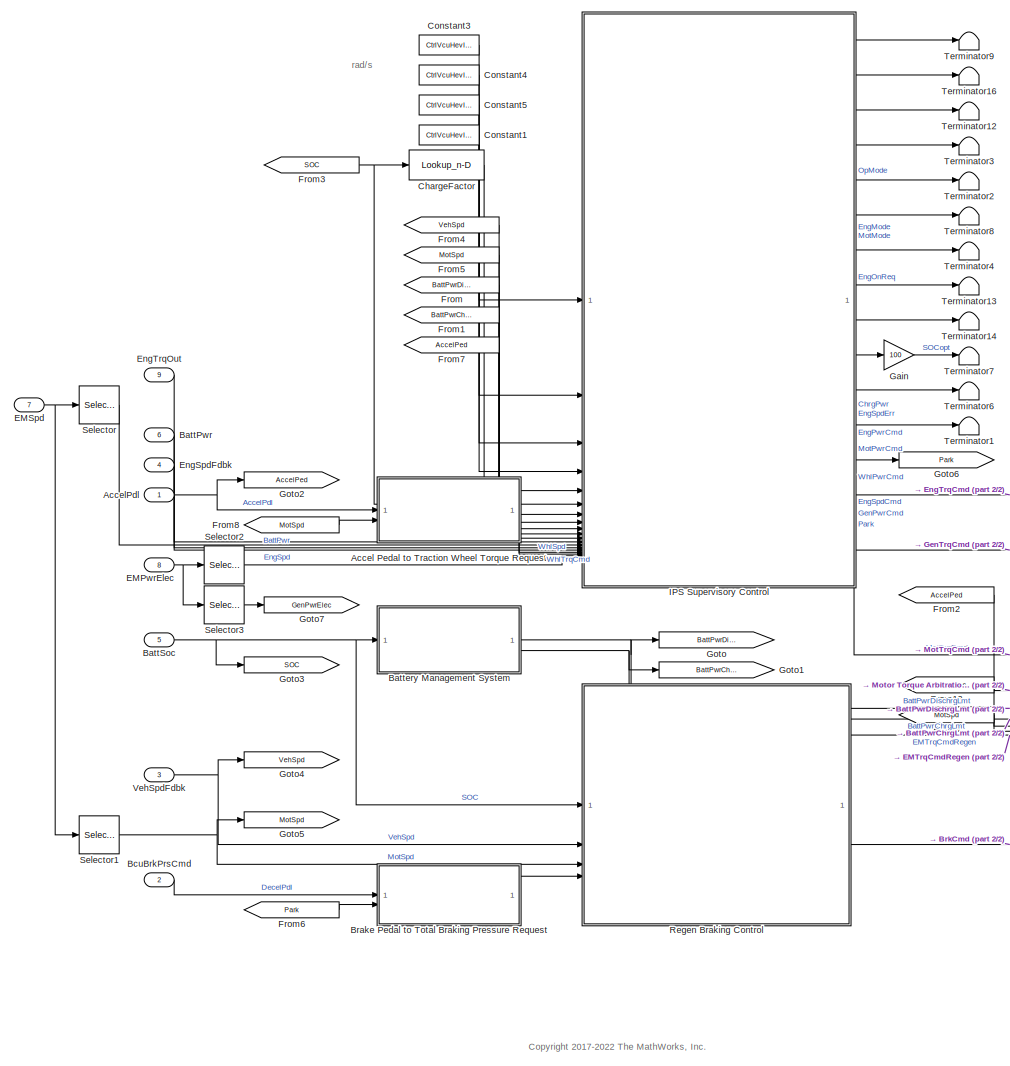
[diagram: root canvas - part 1/2, center side, full height]
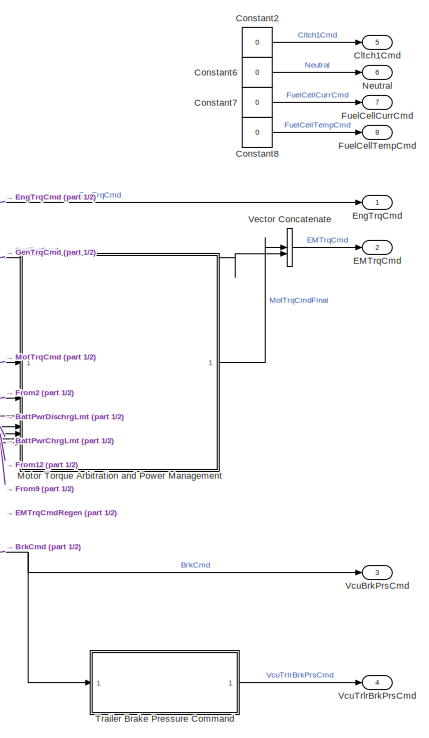
[diagram: root canvas - part 2/2, middle right region]
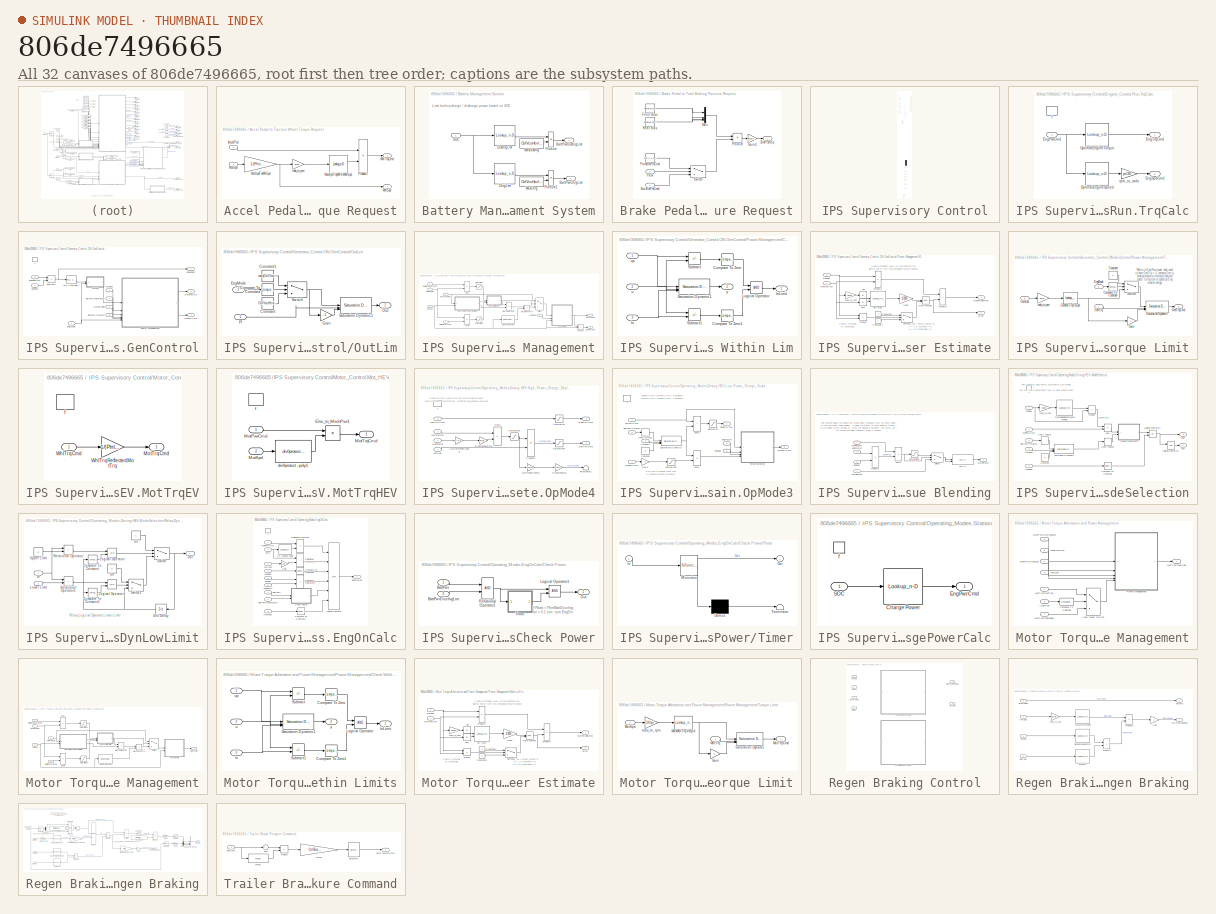
[diagram: thumbnail index - all 32 canvases of the model, root first then tree order]
MODEL slx_806de7496665
KIND model
BLOCK [SubSystem] Accel Pedal to Traction Wheel Torque Request
  InitFcn = [~]=autosharedicon('autolibinternalvvblock',gcb,0);
BLOCK [Inport] Accel Pedal to Traction Wheel Torque Request/AccelPed
BLOCK [Lookup_n-D] Accel Pedal to Traction Wheel Torque Request/MaxSysTrqWhlVsWhlSpd
  BreakpointsForDimension1 = CtrlVcuHevIpsNsysWhl
  ExtrapMethod = Clip
  InputPortMap = u0
  InternalRulePriority = Speed
  NumberOfTableDimensions = 1
  OutDataTypeStr = Inherit: Inherit from 'Table data'
  RndMeth = Simplest
  Table = CtrlVcuHevIpsSysTrqWhl
  UseLastTableValue = on
BLOCK [Inport] Accel Pedal to Traction Wheel Torque Request/MotSpd
  Port = 2
BLOCK [Gain] Accel Pedal to Traction Wheel Torque Request/MotSpdToWhlSpd
  Gain = 1/(PlntHevIpsP2GearRatio)/PlntDiffrntlRatio
BLOCK [Product] Accel Pedal to Traction Wheel Torque Request/Product1
BLOCK [Outport] Accel Pedal to Traction Wheel Torque Request/WhlSpd
  Port = 2
  VectorParamsAs1DForOutWhenUnconnected = off
BLOCK [Outport] Accel Pedal to Traction Wheel Torque Request/WhlTrqCmd
  VectorParamsAs1DForOutWhenUnconnected = off
BLOCK [Gain] Accel Pedal to Traction Wheel Torque Request/rads_to_rpm
  Gain = 30/pi
BLOCK [Inport] AccelPdl
  OutDataTypeStr = double
  PortDimensions = 1
  SamplingMode = Sample based
  SignalType = real
BLOCK [Inport] BattPwr
  OutDataTypeStr = double
  Port = 6
  PortDimensions = 1
  SamplingMode = Sample based
  SignalType = real
BLOCK [Inport] BattSoc
  OutDataTypeStr = double
  Port = 5
  PortDimensions = 1
  SamplingMode = Sample based
  SignalType = real
BLOCK [SubSystem] Battery Management System
BLOCK [Outport] Battery Management System/BattPwrChrgLmt
  Port = 2
  VectorParamsAs1DForOutWhenUnconnected = off
BLOCK [Outport] Battery Management System/BattPwrDischrgLmt
  VectorParamsAs1DForOutWhenUnconnected = off
BLOCK [Lookup_n-D] Battery Management System/ChrgLmt
  BreakpointsForDimension1 = CtrlVcuHevIpsSocBpt
  ExtrapMethod = Clip
  InputPortMap = u0
  InternalRulePriority = Speed
  NumberOfTableDimensions = 1
  RndMeth = Simplest
  Table = CtrlVcuHevIpsChrgLmtBpt
  UseLastTableValue = on
BLOCK [Lookup_n-D] Battery Management System/DischrgLmt
  BreakpointsForDimension1 = CtrlVcuHevIpsSocBpt
  ExtrapMethod = Clip
  InputPortMap = u0
  InternalRulePriority = Speed
  NumberOfTableDimensions = 1
  RndMeth = Simplest
  Table = CtrlVcuHevIpsDischrgLmtBpt
  UseLastTableValue = on
BLOCK [Constant] Battery Management System/MaxChrg
  SampleTime = -1
  Value = CtrlVcuHevIpsBattChrgPwrMax
BLOCK [Constant] Battery Management System/MaxDischrg
  SampleTime = -1
  Value = CtrlVcuHevIpsBattDischrgPwrMax
BLOCK [Product] Battery Management System/Product
BLOCK [Product] Battery Management System/Product1
BLOCK [Inport] Battery Management System/SOC
BLOCK [Inport] BcuBrkPrsCmd
  OutDataTypeStr = double
  Port = 2
  PortDimensions = 4
  SamplingMode = Sample based
  SignalType = real
BLOCK [SubSystem] Brake Pedal to Total Braking Pressure Request
BLOCK [Inport] Brake Pedal to Total Braking Pressure Request/BcuBrkPrsCmd
BLOCK [Outport] Brake Pedal to Total Braking Pressure Request/BrkPrsReq
  VectorParamsAs1DForOutWhenUnconnected = off
BLOCK [Constant] Brake Pedal to Total Braking Pressure Request/Front Bias
  NameLocation = top
  Value = PlntBrkFrntBias
BLOCK [Gain] Brake Pedal to Total Braking Pressure Request/Gain4
  Gain = PlntBrkPrsFctr
BLOCK [Mux] Brake Pedal to Total Braking Pressure Request/Mux
  DisplayOption = bar
BLOCK [Inport] Brake Pedal to Total Braking Pressure Request/Park
  Port = 2
BLOCK [Constant] Brake Pedal to Total Braking Pressure Request/ParkBrkPrsCmd
  Value = 0.5*[1 1 1 1]
BLOCK [Product] Brake Pedal to Total Braking Pressure Request/Product
BLOCK [Constant] Brake Pedal to Total Braking Pressure Request/Rear Bias
  Value = PlntBrkRearBias
BLOCK [Switch] Brake Pedal to Total Braking Pressure Request/Switch
  Criteria = u2 > Threshold
  InputSameDT = off
  SaturateOnIntegerOverflow = off
BLOCK [Lookup_n-D] ChargeFactor
  BreakpointsForDimension1 = [20 80]
  ExtrapMethod = Clip
  InputPortMap = u0
  InternalRulePriority = Speed
  NumberOfTableDimensions = 1
  RndMeth = Simplest
  Table = CtrlVcuHevIpsSOCChrgFactor
  UseLastTableValue = on
BLOCK [Outport] Cltch1Cmd
  OutDataTypeStr = double
  Port = 5
  PortDimensions = 1
  SamplingMode = Sample based
  SignalType = real
  VectorParamsAs1DForOutWhenUnconnected = off
BLOCK [Constant] Constant1
  SampleTime = -1
  Value = CtrlVcuHevIpsSOCmin
BLOCK [Constant] Constant2
  SampleTime = -1
  Value = 0
BLOCK [Constant] Constant3
  SampleTime = -1
  Value = CtrlVcuHevIpsEVSpdLmt
BLOCK [Constant] Constant4
  SampleTime = -1
  Value = CtrlVcuHevIpsN_idle*pi/30
BLOCK [Constant] Constant5
  SampleTime = -1
  Value = CtrlVcuHevIpsSOCtarget
BLOCK [Constant] Constant6
  SampleTime = -1
  Value = 0
BLOCK [Constant] Constant7
  SampleTime = -1
  Value = 0
BLOCK [Constant] Constant8
  SampleTime = -1
  Value = 0
BLOCK [Inport] EMPwrElec
  OutDataTypeStr = double
  Port = 8
  PortDimensions = 2
  SamplingMode = Sample based
  SignalType = real
BLOCK [Inport] EMSpd
  OutDataTypeStr = double
  Port = 7
  PortDimensions = 2
  SamplingMode = Sample based
  SignalType = real
BLOCK [Outport] EMTrqCmd
  OutDataTypeStr = double
  Port = 2
  PortDimensions = 2
  SamplingMode = Sample based
  SignalType = real
  VectorParamsAs1DForOutWhenUnconnected = off
BLOCK [Inport] EngSpdFdbk
  OutDataTypeStr = double
  Port = 4
  PortDimensions = 1
  SamplingMode = Sample based
  SignalType = real
BLOCK [Outport] EngTrqCmd
  OutDataTypeStr = double
  PortDimensions = 1
  SamplingMode = Sample based
  SignalType = real
  VectorParamsAs1DForOutWhenUnconnected = off
BLOCK [Inport] EngTrqOut
  OutDataTypeStr = double
  Port = 9
  PortDimensions = 1
  SamplingMode = Sample based
  SignalType = real
BLOCK [From] From
  GotoTag = BattPwrDischrgLmt
BLOCK [From] From1
  GotoTag = BattPwrChgLmt
BLOCK [From] From12
  GotoTag = GenPwrElec
BLOCK [From] From2
  GotoTag = AccelPed
BLOCK [From] From3
  GotoTag = SOC
BLOCK [From] From4
  GotoTag = VehSpd
BLOCK [From] From5
  GotoTag = MotSpd
BLOCK [From] From6
  GotoTag = Park
BLOCK [From] From7
  GotoTag = AccelPed
BLOCK [From] From8
  GotoTag = MotSpd
BLOCK [From] From9
  GotoTag = MotSpd
BLOCK [Outport] FuelCellCurrCmd
  OutDataTypeStr = double
  Port = 7
  PortDimensions = 1
BLOCK [Outport] FuelCellTempCmd
  OutDataTypeStr = double
  Port = 8
  PortDimensions = 1
BLOCK [Gain] Gain
  Gain = 100
BLOCK [Goto] Goto
  GotoTag = BattPwrDischrgLmt
BLOCK [Goto] Goto1
  GotoTag = BattPwrChgLmt
BLOCK [Goto] Goto2
  GotoTag = AccelPed
BLOCK [Goto] Goto3
  GotoTag = SOC
BLOCK [Goto] Goto4
  GotoTag = VehSpd
BLOCK [Goto] Goto5
  GotoTag = MotSpd
BLOCK [Goto] Goto6
  GotoTag = Park
BLOCK [Goto] Goto7
  GotoTag = GenPwrElec
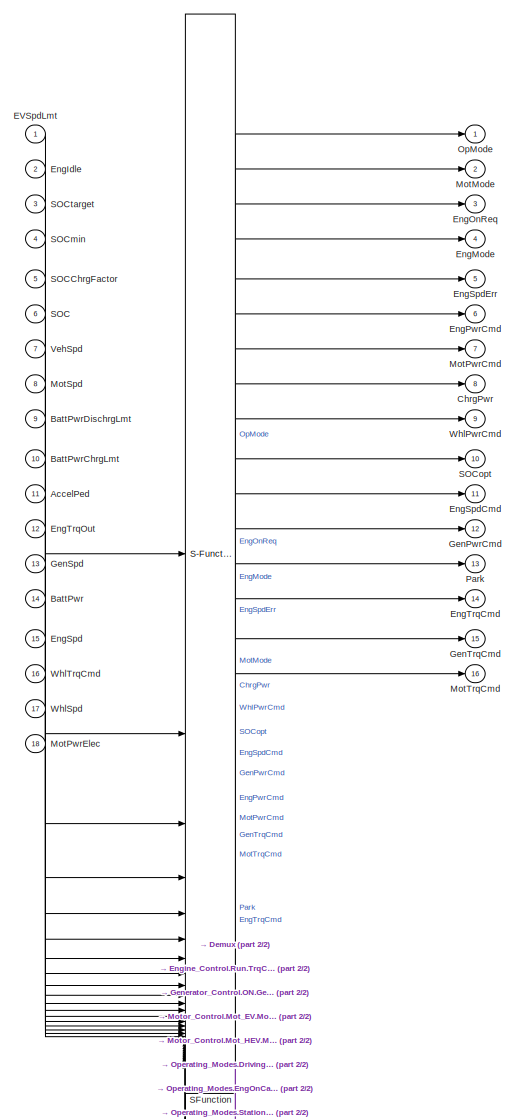
[diagram: IPS Supervisory Control - part 1/2, full width, top band]
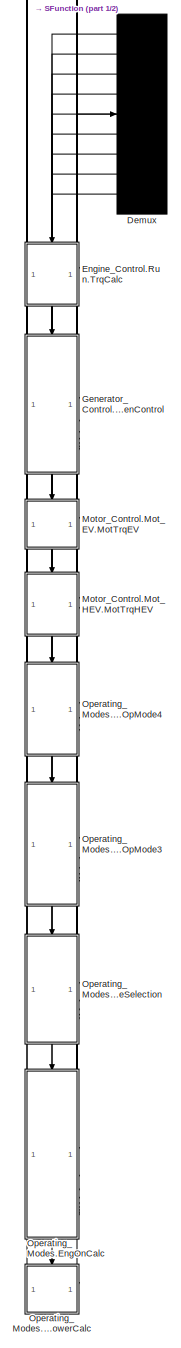
[diagram: IPS Supervisory Control - part 2/2, bottom center region]
BLOCK [SubSystem] IPS Supervisory Control
  ErrorFcn = Stateflow.Translate.translate
  PermitHierarchicalResolution = ExplicitOnly
  SFBlockType = Chart
  TreatAsAtomicUnit = on
BLOCK [Demux] IPS Supervisory Control/ Demux 
  Outputs = 9
BLOCK [S-Function] IPS Supervisory Control/ SFunction 
  EnableBusSupport = off
  FunctionName = sf_sfun
  PortCounts = [33 53]
  SFcnIsStateOwnerBlock = off
  SFunctionDeploymentMode = off
  Tag = Stateflow S-Function 2
BLOCK [Inport] IPS Supervisory Control/AccelPed
  Port = 11
BLOCK [Inport] IPS Supervisory Control/BattPwr
  Port = 14
BLOCK [Inport] IPS Supervisory Control/BattPwrChrgLmt
  Port = 10
BLOCK [Inport] IPS Supervisory Control/BattPwrDischrgLmt
  Port = 9
BLOCK [Outport] IPS Supervisory Control/ChrgPwr
  Port = 8
  VectorParamsAs1DForOutWhenUnconnected = off
BLOCK [Inport] IPS Supervisory Control/EVSpdLmt
BLOCK [Inport] IPS Supervisory Control/EngIdle
  Port = 2
BLOCK [Outport] IPS Supervisory Control/EngMode
  Port = 4
  VectorParamsAs1DForOutWhenUnconnected = off
BLOCK [Outport] IPS Supervisory Control/EngOnReq
  Port = 3
  VectorParamsAs1DForOutWhenUnconnected = off
BLOCK [Outport] IPS Supervisory Control/EngPwrCmd
  Port = 6
  VectorParamsAs1DForOutWhenUnconnected = off
BLOCK [Inport] IPS Supervisory Control/EngSpd
  Port = 15
BLOCK [Outport] IPS Supervisory Control/EngSpdCmd
  Port = 11
  VectorParamsAs1DForOutWhenUnconnected = off
BLOCK [Outport] IPS Supervisory Control/EngSpdErr
  Port = 5
  VectorParamsAs1DForOutWhenUnconnected = off
BLOCK [Outport] IPS Supervisory Control/EngTrqCmd
  Port = 14
  VectorParamsAs1DForOutWhenUnconnected = off
BLOCK [Inport] IPS Supervisory Control/EngTrqOut
  Port = 12
BLOCK [SubSystem] IPS Supervisory Control/Engine_Control.Run.TrqCalc
  PreDeleteFcn = Stateflow.SLINSF.SimulinkMan.removePreDeleteFcn
  UndoDeleteFcn = Stateflow.SLINSF.SimulinkMan.restorePreDeleteFcn
BLOCK [Inport] IPS Supervisory Control/Engine_Control.Run.TrqCalc/EngPwrCmd
BLOCK [Outport] IPS Supervisory Control/Engine_Control.Run.TrqCalc/EngSpdCmd
  Port = 2
  VectorParamsAs1DForOutWhenUnconnected = off
BLOCK [Outport] IPS Supervisory Control/Engine_Control.Run.TrqCalc/EngTrqCmd
  VectorParamsAs1DForOutWhenUnconnected = off
BLOCK [Lookup_n-D] IPS Supervisory Control/Engine_Control.Run.TrqCalc/OptimalEngineSpeed
  BreakpointsForDimension1 = [0 CtrlVcuHevIpsEngPwr(1,1:15)]
  ExtrapMethod = Clip
  InputPortMap = u0
  InternalRulePriority = Speed
  NumberOfTableDimensions = 1
  RndMeth = Simplest
  Table = [CtrlVcuHevIpsN_idle CtrlVcuHevIpsEngSpd(1,1:15)]
  UseLastTableValue = on
BLOCK [Lookup_n-D] IPS Supervisory Control/Engine_Control.Run.TrqCalc/OptimalEngineTorque
  BreakpointsForDimension1 = [0 CtrlVcuHevIpsEngPwr(1,1:15)]
  ExtrapMethod = Clip
  InputPortMap = u0
  InternalRulePriority = Speed
  NumberOfTableDimensions = 1
  RndMeth = Simplest
  Table = [0 CtrlVcuHevIpsEngTrq(1,1:15)]
  UseLastTableValue = on
BLOCK [TriggerPort] IPS Supervisory Control/Engine_Control.Run.TrqCalc/f
  CopyFcn = Stateflow.SLINSF.SimulinkMan.removeBlockPreDeleteFcn
  PreDeleteFcn = Stateflow.SLINSF.SimulinkMan.unsafePredeleteFcn
  StatesWhenEnabling = reset
  TriggerType = function-call
  VariantControl = Variant
BLOCK [Gain] IPS Supervisory Control/Engine_Control.Run.TrqCalc/rpm_to_rads
  Gain = pi/30
BLOCK [Outport] IPS Supervisory Control/GenPwrCmd
  Port = 12
  VectorParamsAs1DForOutWhenUnconnected = off
BLOCK [Inport] IPS Supervisory Control/GenSpd
  Port = 13
BLOCK [Outport] IPS Supervisory Control/GenTrqCmd
  Port = 15
  VectorParamsAs1DForOutWhenUnconnected = off
BLOCK [SubSystem] IPS Supervisory Control/Generator_Control.ON.GenControl
  PreDeleteFcn = Stateflow.SLINSF.SimulinkMan.removePreDeleteFcn
  UndoDeleteFcn = Stateflow.SLINSF.SimulinkMan.restorePreDeleteFcn
BLOCK [Inport] IPS Supervisory Control/Generator_Control.ON.GenControl/BattPwrChrgLmt
  Port = 5
BLOCK [Inport] IPS Supervisory Control/Generator_Control.ON.GenControl/BattPwrDischrgLmt
  Port = 3
BLOCK [Inport] IPS Supervisory Control/Generator_Control.ON.GenControl/EngMode
  Port = 7
BLOCK [Inport] IPS Supervisory Control/Generator_Control.ON.GenControl/EngSpd
  Port = 2
BLOCK [Inport] IPS Supervisory Control/Generator_Control.ON.GenControl/EngSpdCmd
  Port = 6
BLOCK [Outport] IPS Supervisory Control/Generator_Control.ON.GenControl/EngSpdErr
  VectorParamsAs1DForOutWhenUnconnected = off
BLOCK [Outport] IPS Supervisory Control/Generator_Control.ON.GenControl/GenPwrCmd
  Port = 3
  VectorParamsAs1DForOutWhenUnconnected = off
BLOCK [Inport] IPS Supervisory Control/Generator_Control.ON.GenControl/GenSpd
BLOCK [Outport] IPS Supervisory Control/Generator_Control.ON.GenControl/GenTrqCmd
  Port = 2
  VectorParamsAs1DForOutWhenUnconnected = off
BLOCK [Inport] IPS Supervisory Control/Generator_Control.ON.GenControl/MotPwrElec
  Port = 4
BLOCK [SubSystem] IPS Supervisory Control/Generator_Control.ON.GenControl/OutLim
BLOCK [Reference] IPS Supervisory Control/Generator_Control.ON.GenControl/OutLim/Compare To Constant  REF=simulink/Logic and Bit
Operations/Compare
To Constant
  SourceBlock = simulink/Logic and Bit\nOperations/Compare\nTo Constant
  SourceType = Compare To Constant
BLOCK [Constant] IPS Supervisory Control/Generator_Control.ON.GenControl/OutLim/Constant
  Value = CtrlVcuHevIpsGenTrqMax
BLOCK [Constant] IPS Supervisory Control/Generator_Control.ON.GenControl/OutLim/Constant1
  Value = max(CtrlVcuHevIpsEngTrq)*PlntHevIpsP1SunRingRatio/(1+PlntHevIpsP1SunRingRatio)
BLOCK [Inport] IPS Supervisory Control/Generator_Control.ON.GenControl/OutLim/EngMode
  Port = 2
BLOCK [Gain] IPS Supervisory Control/Generator_Control.ON.GenControl/OutLim/Gain
  Gain = -1
BLOCK [Outport] IPS Supervisory Control/Generator_Control.ON.GenControl/OutLim/Out
  VectorParamsAs1DForOutWhenUnconnected = off
BLOCK [Inport] IPS Supervisory Control/Generator_Control.ON.GenControl/OutLim/PI
BLOCK [Reference] IPS Supervisory Control/Generator_Control.ON.GenControl/OutLim/Saturation Dynamic1  REF=simulink/Discontinuities/Saturation
Dynamic
  SourceBlock = simulink/Discontinuities/Saturation\nDynamic
  SourceType = Saturation Dynamic
BLOCK [Switch] IPS Supervisory Control/Generator_Control.ON.GenControl/OutLim/Switch
  Criteria = u2 > Threshold
  InputSameDT = off
  SaturateOnIntegerOverflow = off
BLOCK [Reference] IPS Supervisory Control/Generator_Control.ON.GenControl/PID Controller1  REF=slpidlib/PID Controller
  SourceBlock = slpidlib/PID Controller
  SourceType = PID 1dof
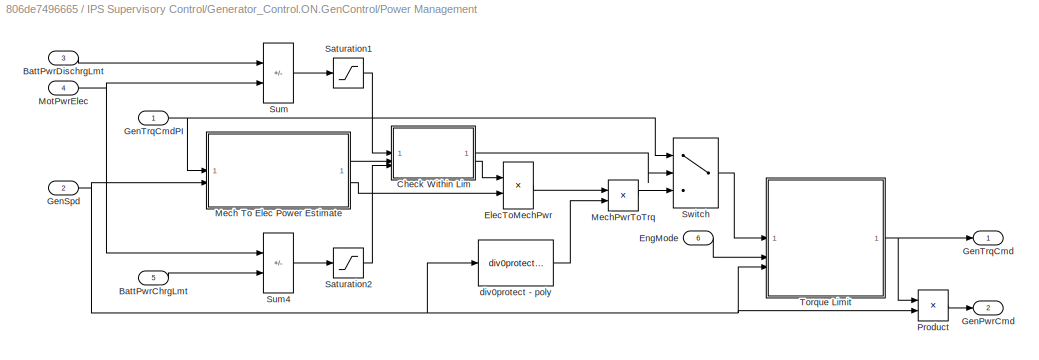
BLOCK [SubSystem] IPS Supervisory Control/Generator_Control.ON.GenControl/Power Management
BLOCK [Inport] IPS Supervisory Control/Generator_Control.ON.GenControl/Power Management/BattPwrChrgLmt
  Port = 5
BLOCK [Inport] IPS Supervisory Control/Generator_Control.ON.GenControl/Power Management/BattPwrDischrgLmt
  Port = 3
BLOCK [SubSystem] IPS Supervisory Control/Generator_Control.ON.GenControl/Power Management/Check Within Lim
BLOCK [Reference] IPS Supervisory Control/Generator_Control.ON.GenControl/Power Management/Check Within Lim/Compare To Zero  REF=simulink/Logic and Bit
Operations/Compare
To Zero
  SourceBlock = simulink/Logic and Bit\nOperations/Compare\nTo Zero
  SourceType = Compare To Zero
BLOCK [Reference] IPS Supervisory Control/Generator_Control.ON.GenControl/Power Management/Check Within Lim/Compare To Zero1  REF=simulink/Logic and Bit
Operations/Compare
To Zero
  SourceBlock = simulink/Logic and Bit\nOperations/Compare\nTo Zero
  SourceType = Compare To Zero
BLOCK [Outport] IPS Supervisory Control/Generator_Control.ON.GenControl/Power Management/Check Within Lim/InLimit
  VectorParamsAs1DForOutWhenUnconnected = off
BLOCK [Logic] IPS Supervisory Control/Generator_Control.ON.GenControl/Power Management/Check Within Lim/Logical Operator
  AllPortsSameDT = off
  OutDataTypeStr = boolean
BLOCK [Reference] IPS Supervisory Control/Generator_Control.ON.GenControl/Power Management/Check Within Lim/Saturation Dynamic1  REF=simulink/Discontinuities/Saturation
Dynamic
  SourceBlock = simulink/Discontinuities/Saturation\nDynamic
  SourceType = Saturation Dynamic
BLOCK [Sum] IPS Supervisory Control/Generator_Control.ON.GenControl/Power Management/Check Within Lim/Subtract
  IconShape = rectangular
  Inputs = +-
BLOCK [Sum] IPS Supervisory Control/Generator_Control.ON.GenControl/Power Management/Check Within Lim/Subtract1
  IconShape = rectangular
  Inputs = -+
BLOCK [Inport] IPS Supervisory Control/Generator_Control.ON.GenControl/Power Management/Check Within Lim/lo
  Port = 3
BLOCK [Inport] IPS Supervisory Control/Generator_Control.ON.GenControl/Power Management/Check Within Lim/u
  Port = 2
BLOCK [Inport] IPS Supervisory Control/Generator_Control.ON.GenControl/Power Management/Check Within Lim/up
BLOCK [Outport] IPS Supervisory Control/Generator_Control.ON.GenControl/Power Management/Check Within Lim/y
  Port = 2
  VectorParamsAs1DForOutWhenUnconnected = off
BLOCK [Product] IPS Supervisory Control/Generator_Control.ON.GenControl/Power Management/ElecToMechPwr
  Inputs = */
BLOCK [Inport] IPS Supervisory Control/Generator_Control.ON.GenControl/Power Management/EngMode
  Port = 6
BLOCK [Outport] IPS Supervisory Control/Generator_Control.ON.GenControl/Power Management/GenPwrCmd
  Port = 2
  VectorParamsAs1DForOutWhenUnconnected = off
BLOCK [Inport] IPS Supervisory Control/Generator_Control.ON.GenControl/Power Management/GenSpd
  Port = 2
BLOCK [Outport] IPS Supervisory Control/Generator_Control.ON.GenControl/Power Management/GenTrqCmd
  VectorParamsAs1DForOutWhenUnconnected = off
BLOCK [Inport] IPS Supervisory Control/Generator_Control.ON.GenControl/Power Management/GenTrqCmdPI
BLOCK [SubSystem] IPS Supervisory Control/Generator_Control.ON.GenControl/Power Management/Mech To Elec Power Estimate
BLOCK [Abs] IPS Supervisory Control/Generator_Control.ON.GenControl/Power Management/Mech To Elec Power Estimate/Abs
  SaturateOnIntegerOverflow = off
BLOCK [Abs] IPS Supervisory Control/Generator_Control.ON.GenControl/Power Management/Mech To Elec Power Estimate/Abs1
  SaturateOnIntegerOverflow = off
BLOCK [Constant] IPS Supervisory Control/Generator_Control.ON.GenControl/Power Management/Mech To Elec Power Estimate/Constant1
  SampleTime = -1
  Value = -1
BLOCK [Constant] IPS Supervisory Control/Generator_Control.ON.GenControl/Power Management/Mech To Elec Power Estimate/Constant2
  SampleTime = -1
BLOCK [Lookup_n-D] IPS Supervisory Control/Generator_Control.ON.GenControl/Power Management/Mech To Elec Power Estimate/Eff Map
  BreakpointsForDimension1 = PlntEM2SpdEff*30/pi
  BreakpointsForDimension2 = PlntEM2TrqEff
  ExtrapMethod = Clip
  InputPortMap = u0,u1
  InternalRulePriority = Speed
  OutDataTypeStr = Inherit: Inherit from 'Table data'
  RndMeth = Simplest
  Table = PlntEM2EffTbl
  UseLastTableValue = on
BLOCK [Gain] IPS Supervisory Control/Generator_Control.ON.GenControl/Power Management/Mech To Elec Power Estimate/Gain1
  Gain = 1/100
BLOCK [Outport] IPS Supervisory Control/Generator_Control.ON.GenControl/Power Management/Mech To Elec Power Estimate/GenPwrElecReq
  VectorParamsAs1DForOutWhenUnconnected = off
BLOCK [Inport] IPS Supervisory Control/Generator_Control.ON.GenControl/Power Management/Mech To Elec Power Estimate/GenSpd
  Port = 2
BLOCK [Inport] IPS Supervisory Control/Generator_Control.ON.GenControl/Power Management/Mech To Elec Power Estimate/GenTrqCmd
BLOCK [Math] IPS Supervisory Control/Generator_Control.ON.GenControl/Power Management/Mech To Elec Power Estimate/Math Function
  Operator = pow
  OutputSignalType = real
  SignedPower = on
BLOCK [Product] IPS Supervisory Control/Generator_Control.ON.GenControl/Power Management/Mech To Elec Power Estimate/Product
BLOCK [Product] IPS Supervisory Control/Generator_Control.ON.GenControl/Power Management/Mech To Elec Power Estimate/Product3
BLOCK [Product] IPS Supervisory Control/Generator_Control.ON.GenControl/Power Management/Mech To Elec Power Estimate/Product4
BLOCK [Switch] IPS Supervisory Control/Generator_Control.ON.GenControl/Power Management/Mech To Elec Power Estimate/Switch2
  InputSameDT = off
  SaturateOnIntegerOverflow = off
BLOCK [Outport] IPS Supervisory Control/Generator_Control.ON.GenControl/Power Management/Mech To Elec Power Estimate/eff2k
  Port = 2
  VectorParamsAs1DForOutWhenUnconnected = off
BLOCK [Gain] IPS Supervisory Control/Generator_Control.ON.GenControl/Power Management/Mech To Elec Power Estimate/rads_to_rpm
  Gain = 30/pi
  NameLocation = top
BLOCK [Product] IPS Supervisory Control/Generator_Control.ON.GenControl/Power Management/MechPwrToTrq
  Inputs = */
BLOCK [Inport] IPS Supervisory Control/Generator_Control.ON.GenControl/Power Management/MotPwrElec
  Port = 4
BLOCK [Product] IPS Supervisory Control/Generator_Control.ON.GenControl/Power Management/Product
BLOCK [Saturate] IPS Supervisory Control/Generator_Control.ON.GenControl/Power Management/Saturation1
  LowerLimit = 0
  UpperLimit = inf
BLOCK [Saturate] IPS Supervisory Control/Generator_Control.ON.GenControl/Power Management/Saturation2
  LowerLimit = -inf
  UpperLimit = 0
BLOCK [Sum] IPS Supervisory Control/Generator_Control.ON.GenControl/Power Management/Sum
  IconShape = rectangular
  Inputs = +-
BLOCK [Sum] IPS Supervisory Control/Generator_Control.ON.GenControl/Power Management/Sum4
  IconShape = rectangular
  Inputs = -+
BLOCK [Switch] IPS Supervisory Control/Generator_Control.ON.GenControl/Power Management/Switch
  Criteria = u2 > Threshold
  InputSameDT = off
  SaturateOnIntegerOverflow = off
BLOCK [SubSystem] IPS Supervisory Control/Generator_Control.ON.GenControl/Power Management/Torque Limit
BLOCK [Reference] IPS Supervisory Control/Generator_Control.ON.GenControl/Power Management/Torque Limit/Compare To Constant  REF=simulink/Logic and Bit
Operations/Compare
To Constant
  SourceBlock = simulink/Logic and Bit\nOperations/Compare\nTo Constant
  SourceType = Compare To Constant
BLOCK [Constant] IPS Supervisory Control/Generator_Control.ON.GenControl/Power Management/Torque Limit/Constant
  Value = 0
BLOCK [Inport] IPS Supervisory Control/Generator_Control.ON.GenControl/Power Management/Torque Limit/EngMode
  Port = 2
BLOCK [Gain] IPS Supervisory Control/Generator_Control.ON.GenControl/Power Management/Torque Limit/Gain
  Gain = -1
BLOCK [Lookup_n-D] IPS Supervisory Control/Generator_Control.ON.GenControl/Power Management/Torque Limit/GenMotTrqVsSpd
  BreakpointsForDimension1 = PlntEM2Spd*30/pi
  ExtrapMethod = Clip
  InputPortMap = u0
  InternalRulePriority = Speed
  NumberOfTableDimensions = 1
  OutDataTypeStr = Inherit: Inherit from 'Table data'
  RndMeth = Simplest
  Table = PlntEM2Trq
  UseLastTableValue = on
BLOCK [Inport] IPS Supervisory Control/Generator_Control.ON.GenControl/Power Management/Torque Limit/GenSpd
  Port = 3
BLOCK [Inport] IPS Supervisory Control/Generator_Control.ON.GenControl/Power Management/Torque Limit/GenTrq
BLOCK [Outport] IPS Supervisory Control/Generator_Control.ON.GenControl/Power Management/Torque Limit/GenTrqCmd
  VectorParamsAs1DForOutWhenUnconnected = off
BLOCK [Reference] IPS Supervisory Control/Generator_Control.ON.GenControl/Power Management/Torque Limit/Saturation Dynamic  REF=simulink/Discontinuities/Saturation
Dynamic
  SourceBlock = simulink/Discontinuities/Saturation\nDynamic
  SourceType = Saturation Dynamic
BLOCK [Switch] IPS Supervisory Control/Generator_Control.ON.GenControl/Power Management/Torque Limit/Switch
  Criteria = u2 > Threshold
  InputSameDT = off
  SaturateOnIntegerOverflow = off
BLOCK [Gain] IPS Supervisory Control/Generator_Control.ON.GenControl/Power Management/Torque Limit/rads_to_rpm
  Gain = 30/pi
BLOCK [Reference] IPS Supervisory Control/Generator_Control.ON.GenControl/Power Management/div0protect - poly  REF=autolibutils/div0protect - poly
  SourceBlock = autolibutils/div0protect - poly
BLOCK [Sum] IPS Supervisory Control/Generator_Control.ON.GenControl/Subtract2
  IconShape = rectangular
  Inputs = +-
BLOCK [TriggerPort] IPS Supervisory Control/Generator_Control.ON.GenControl/f
  CopyFcn = Stateflow.SLINSF.SimulinkMan.removeBlockPreDeleteFcn
  PreDeleteFcn = Stateflow.SLINSF.SimulinkMan.unsafePredeleteFcn
  SampleTime = -1
  StatesWhenEnabling = reset
  TriggerType = function-call
  VariantControl = Variant
BLOCK [Outport] IPS Supervisory Control/MotMode
  Port = 2
  VectorParamsAs1DForOutWhenUnconnected = off
BLOCK [Outport] IPS Supervisory Control/MotPwrCmd
  Port = 7
  VectorParamsAs1DForOutWhenUnconnected = off
BLOCK [Inport] IPS Supervisory Control/MotPwrElec
  Port = 18
BLOCK [Inport] IPS Supervisory Control/MotSpd
  Port = 8
BLOCK [Outport] IPS Supervisory Control/MotTrqCmd
  Port = 16
  VectorParamsAs1DForOutWhenUnconnected = off
BLOCK [SubSystem] IPS Supervisory Control/Motor_Control.Mot_EV.MotTrqEV
  PreDeleteFcn = Stateflow.SLINSF.SimulinkMan.removePreDeleteFcn
  UndoDeleteFcn = Stateflow.SLINSF.SimulinkMan.restorePreDeleteFcn
BLOCK [Outport] IPS Supervisory Control/Motor_Control.Mot_EV.MotTrqEV/MotTrqCmd
  VectorParamsAs1DForOutWhenUnconnected = off
BLOCK [Inport] IPS Supervisory Control/Motor_Control.Mot_EV.MotTrqEV/WhlTrqCmd
BLOCK [Gain] IPS Supervisory Control/Motor_Control.Mot_EV.MotTrqEV/WhlTrqReflectedMotTrq
  Gain = 1/(PlntHevIpsP2GearRatio)/PlntDiffrntlRatio
BLOCK [TriggerPort] IPS Supervisory Control/Motor_Control.Mot_EV.MotTrqEV/f
  CopyFcn = Stateflow.SLINSF.SimulinkMan.removeBlockPreDeleteFcn
  PreDeleteFcn = Stateflow.SLINSF.SimulinkMan.unsafePredeleteFcn
  StatesWhenEnabling = reset
  TriggerType = function-call
  VariantControl = Variant
BLOCK [SubSystem] IPS Supervisory Control/Motor_Control.Mot_HEV.MotTrqHEV
  PreDeleteFcn = Stateflow.SLINSF.SimulinkMan.removePreDeleteFcn
  UndoDeleteFcn = Stateflow.SLINSF.SimulinkMan.restorePreDeleteFcn
BLOCK [Product] IPS Supervisory Control/Motor_Control.Mot_HEV.MotTrqHEV/Elec_to_MechPwr1
  Inputs = */
BLOCK [Inport] IPS Supervisory Control/Motor_Control.Mot_HEV.MotTrqHEV/MotPwrCmd
BLOCK [Inport] IPS Supervisory Control/Motor_Control.Mot_HEV.MotTrqHEV/MotSpd
  Port = 2
BLOCK [Outport] IPS Supervisory Control/Motor_Control.Mot_HEV.MotTrqHEV/MotTrqCmd
  VectorParamsAs1DForOutWhenUnconnected = off
BLOCK [Reference] IPS Supervisory Control/Motor_Control.Mot_HEV.MotTrqHEV/div0protect - poly1  REF=autolibutils/div0protect - poly
  SourceBlock = autolibutils/div0protect - poly
BLOCK [TriggerPort] IPS Supervisory Control/Motor_Control.Mot_HEV.MotTrqHEV/f
  CopyFcn = Stateflow.SLINSF.SimulinkMan.removeBlockPreDeleteFcn
  PreDeleteFcn = Stateflow.SLINSF.SimulinkMan.unsafePredeleteFcn
  StatesWhenEnabling = reset
  TriggerType = function-call
  VariantControl = Variant
BLOCK [Outport] IPS Supervisory Control/OpMode
  VectorParamsAs1DForOutWhenUnconnected = off
BLOCK [SubSystem] IPS Supervisory Control/Operating_Modes.Driving.HEV.High_Power_Charge_Deplete.OpMode4
  PreDeleteFcn = Stateflow.SLINSF.SimulinkMan.removePreDeleteFcn
  UndoDeleteFcn = Stateflow.SLINSF.SimulinkMan.restorePreDeleteFcn
BLOCK [Gain] IPS Supervisory Control/Operating_Modes.Driving.HEV.High_Power_Charge_Deplete.OpMode4/CarrierTrqToRingTrg
  Gain = 1/(1+PlntHevIpsP1SunRingRatio)
BLOCK [Outport] IPS Supervisory Control/Operating_Modes.Driving.HEV.High_Power_Charge_Deplete.OpMode4/EngPwrCmd
  VectorParamsAs1DForOutWhenUnconnected = off
BLOCK [Inport] IPS Supervisory Control/Operating_Modes.Driving.HEV.High_Power_Charge_Deplete.OpMode4/EngTrqOut
  Port = 4
BLOCK [Outport] IPS Supervisory Control/Operating_Modes.Driving.HEV.High_Power_Charge_Deplete.OpMode4/MotPwrCmd
  Port = 2
  VectorParamsAs1DForOutWhenUnconnected = off
BLOCK [Product] IPS Supervisory Control/Operating_Modes.Driving.HEV.High_Power_Charge_Deplete.OpMode4/Product1
BLOCK [Gain] IPS Supervisory Control/Operating_Modes.Driving.HEV.High_Power_Charge_Deplete.OpMode4/RingTrqToMot
  Gain = 1/PlntHevIpsP2GearRatio
BLOCK [Gain] IPS Supervisory Control/Operating_Modes.Driving.HEV.High_Power_Charge_Deplete.OpMode4/RingTrqToWhlTrq
  Gain = PlntDiffrntlRatio
BLOCK [Saturate] IPS Supervisory Control/Operating_Modes.Driving.HEV.High_Power_Charge_Deplete.OpMode4/Saturation
  LowerLimit = 0
  UpperLimit = max(CtrlVcuHevIpsEngPwr(1,1:15))
BLOCK [Saturate] IPS Supervisory Control/Operating_Modes.Driving.HEV.High_Power_Charge_Deplete.OpMode4/Saturation1
  LowerLimit = 0
  UpperLimit = inf
BLOCK [Saturate] IPS Supervisory Control/Operating_Modes.Driving.HEV.High_Power_Charge_Deplete.OpMode4/Saturation4
  LowerLimit = 0
  UpperLimit = max(CtrlVcuHevIpsMotPwr)
BLOCK [Sum] IPS Supervisory Control/Operating_Modes.Driving.HEV.High_Power_Charge_Deplete.OpMode4/Sum2
  IconShape = rectangular
  Inputs = +-
BLOCK [Terminator] IPS Supervisory Control/Operating_Modes.Driving.HEV.High_Power_Charge_Deplete.OpMode4/Terminator1
BLOCK [Inport] IPS Supervisory Control/Operating_Modes.Driving.HEV.High_Power_Charge_Deplete.OpMode4/WhlPwrCmd
  Port = 3
BLOCK [Inport] IPS Supervisory Control/Operating_Modes.Driving.HEV.High_Power_Charge_Deplete.OpMode4/WhlSpd
  Port = 2
BLOCK [Inport] IPS Supervisory Control/Operating_Modes.Driving.HEV.High_Power_Charge_Deplete.OpMode4/WhlTrqCmd
BLOCK [Gain] IPS Supervisory Control/Operating_Modes.Driving.HEV.High_Power_Charge_Deplete.OpMode4/WhlTrqToRingTrq
  Gain = 1/PlntDiffrntlRatio
BLOCK [TriggerPort] IPS Supervisory Control/Operating_Modes.Driving.HEV.High_Power_Charge_Deplete.OpMode4/f
  CopyFcn = Stateflow.SLINSF.SimulinkMan.removeBlockPreDeleteFcn
  PreDeleteFcn = Stateflow.SLINSF.SimulinkMan.unsafePredeleteFcn
  StatesWhenEnabling = reset
  TriggerType = function-call
  VariantControl = Variant
BLOCK [SubSystem] IPS Supervisory Control/Operating_Modes.Driving.HEV.Low_Power_Charge_Sustain.OpMode3
  PreDeleteFcn = Stateflow.SLINSF.SimulinkMan.removePreDeleteFcn
  UndoDeleteFcn = Stateflow.SLINSF.SimulinkMan.restorePreDeleteFcn
BLOCK [Inport] IPS Supervisory Control/Operating_Modes.Driving.HEV.Low_Power_Charge_Sustain.OpMode3/BattPwrChrgLmt
  Port = 3
BLOCK [Inport] IPS Supervisory Control/Operating_Modes.Driving.HEV.Low_Power_Charge_Sustain.OpMode3/ChrgPwr
  Port = 2
BLOCK [Constant] IPS Supervisory Control/Operating_Modes.Driving.HEV.Low_Power_Charge_Sustain.OpMode3/Constant
  Value = 0
BLOCK [Outport] IPS Supervisory Control/Operating_Modes.Driving.HEV.Low_Power_Charge_Sustain.OpMode3/EngPwrCmd
  VectorParamsAs1DForOutWhenUnconnected = off
BLOCK [Inport] IPS Supervisory Control/Operating_Modes.Driving.HEV.Low_Power_Charge_Sustain.OpMode3/EngSpd
  Port = 6
BLOCK [Inport] IPS Supervisory Control/Operating_Modes.Driving.HEV.Low_Power_Charge_Sustain.OpMode3/EngTrqOut
  Port = 5
BLOCK [Gain] IPS Supervisory Control/Operating_Modes.Driving.HEV.Low_Power_Charge_Sustain.OpMode3/Gain1
  Gain = -1
BLOCK [Inport] IPS Supervisory Control/Operating_Modes.Driving.HEV.Low_Power_Charge_Sustain.OpMode3/GenPwrCmd
  Port = 4
BLOCK [Outport] IPS Supervisory Control/Operating_Modes.Driving.HEV.Low_Power_Charge_Sustain.OpMode3/MotPwrCmd
  Port = 2
  VectorParamsAs1DForOutWhenUnconnected = off
BLOCK [Saturate] IPS Supervisory Control/Operating_Modes.Driving.HEV.Low_Power_Charge_Sustain.OpMode3/Saturation
  LowerLimit = 0
  UpperLimit = max(CtrlVcuHevIpsEngPwr(1,1:15))
BLOCK [Reference] IPS Supervisory Control/Operating_Modes.Driving.HEV.Low_Power_Charge_Sustain.OpMode3/Saturation Dynamic3  REF=simulink/Discontinuities/Saturation
Dynamic
  SourceBlock = simulink/Discontinuities/Saturation\nDynamic
  SourceType = Saturation Dynamic
BLOCK [Saturate] IPS Supervisory Control/Operating_Modes.Driving.HEV.Low_Power_Charge_Sustain.OpMode3/Saturation3
  LowerLimit = -CtrlVcuHevIpsGenPwrMax
  UpperLimit = 0
BLOCK [Sum] IPS Supervisory Control/Operating_Modes.Driving.HEV.Low_Power_Charge_Sustain.OpMode3/Sum1
  IconShape = rectangular
  Inputs = -+
BLOCK [Sum] IPS Supervisory Control/Operating_Modes.Driving.HEV.Low_Power_Charge_Sustain.OpMode3/Sum3
  IconShape = rectangular
BLOCK [SubSystem] IPS Supervisory Control/Operating_Modes.Driving.HEV.Low_Power_Charge_Sustain.OpMode3/Torque Blending
BLOCK [Inport] IPS Supervisory Control/Operating_Modes.Driving.HEV.Low_Power_Charge_Sustain.OpMode3/Torque Blending/EngSpd
  Port = 3
BLOCK [Inport] IPS Supervisory Control/Operating_Modes.Driving.HEV.Low_Power_Charge_Sustain.OpMode3/Torque Blending/EngTrqOut
  Port = 2
BLOCK [Reference] IPS Supervisory Control/Operating_Modes.Driving.HEV.Low_Power_Charge_Sustain.OpMode3/Torque Blending/LPF IC  REF=autolibutils/LPF IC
  SourceBlock = autolibutils/LPF IC
BLOCK [Outport] IPS Supervisory Control/Operating_Modes.Driving.HEV.Low_Power_Charge_Sustain.OpMode3/Torque Blending/MotPwrCmd
  VectorParamsAs1DForOutWhenUnconnected = off
BLOCK [Inport] IPS Supervisory Control/Operating_Modes.Driving.HEV.Low_Power_Charge_Sustain.OpMode3/Torque Blending/MotPwrLow
  Port = 4
BLOCK [Product] IPS Supervisory Control/Operating_Modes.Driving.HEV.Low_Power_Charge_Sustain.OpMode3/Torque Blending/Product2
BLOCK [Saturate] IPS Supervisory Control/Operating_Modes.Driving.HEV.Low_Power_Charge_Sustain.OpMode3/Torque Blending/Saturation5
  LowerLimit = 0
  UpperLimit = inf
BLOCK [Sum] IPS Supervisory Control/Operating_Modes.Driving.HEV.Low_Power_Charge_Sustain.OpMode3/Torque Blending/Sum6
  IconShape = rectangular
  Inputs = +-
BLOCK [Switch] IPS Supervisory Control/Operating_Modes.Driving.HEV.Low_Power_Charge_Sustain.OpMode3/Torque Blending/Switch
  InputSameDT = off
  SaturateOnIntegerOverflow = off
BLOCK [Inport] IPS Supervisory Control/Operating_Modes.Driving.HEV.Low_Power_Charge_Sustain.OpMode3/Torque Blending/WhlPwrCmd
BLOCK [UnaryMinus] IPS Supervisory Control/Operating_Modes.Driving.HEV.Low_Power_Charge_Sustain.OpMode3/Unary Minus1
BLOCK [Inport] IPS Supervisory Control/Operating_Modes.Driving.HEV.Low_Power_Charge_Sustain.OpMode3/WhlPwrCmd
BLOCK [TriggerPort] IPS Supervisory Control/Operating_Modes.Driving.HEV.Low_Power_Charge_Sustain.OpMode3/f
  CopyFcn = Stateflow.SLINSF.SimulinkMan.removeBlockPreDeleteFcn
  PreDeleteFcn = Stateflow.SLINSF.SimulinkMan.unsafePredeleteFcn
  StatesWhenEnabling = reset
  TriggerType = function-call
  VariantControl = Variant
BLOCK [SubSystem] IPS Supervisory Control/Operating_Modes.Driving.HEV.ModeSelection
  PreDeleteFcn = Stateflow.SLINSF.SimulinkMan.removePreDeleteFcn
  UndoDeleteFcn = Stateflow.SLINSF.SimulinkMan.restorePreDeleteFcn
BLOCK [Inport] IPS Supervisory Control/Operating_Modes.Driving.HEV.ModeSelection/AccelPed
  Port = 3
  PortDimensions = 1
  SignalType = real
  VarSizeSig = No
BLOCK [Sum] IPS Supervisory Control/Operating_Modes.Driving.HEV.ModeSelection/Add1
  IconShape = rectangular
  Inputs = -+
BLOCK [Inport] IPS Supervisory Control/Operating_Modes.Driving.HEV.ModeSelection/BattPwrChrgLmt
  Port = 5
BLOCK [Inport] IPS Supervisory Control/Operating_Modes.Driving.HEV.ModeSelection/ChrgPwr
  Port = 4
BLOCK [Reference] IPS Supervisory Control/Operating_Modes.Driving.HEV.ModeSelection/Compare To Constant  REF=simulink/Logic and Bit
Operations/Compare
To Constant
  SourceBlock = simulink/Logic and Bit\nOperations/Compare\nTo Constant
  SourceType = Compare To Constant
BLOCK [Constant] IPS Supervisory Control/Operating_Modes.Driving.HEV.ModeSelection/Constant
  Value = 0
BLOCK [Outport] IPS Supervisory Control/Operating_Modes.Driving.HEV.ModeSelection/High
  Port = 2
  VectorParamsAs1DForOutWhenUnconnected = off
BLOCK [Logic] IPS Supervisory Control/Operating_Modes.Driving.HEV.ModeSelection/Logical Operator1
  AllPortsSameDT = off
  Operator = OR
  OutDataTypeStr = boolean
BLOCK [Logic] IPS Supervisory Control/Operating_Modes.Driving.HEV.ModeSelection/Logical Operator2
  AllPortsSameDT = off
  Operator = NOT
  OutDataTypeStr = boolean
BLOCK [Outport] IPS Supervisory Control/Operating_Modes.Driving.HEV.ModeSelection/Low
  VectorParamsAs1DForOutWhenUnconnected = off
BLOCK [Lookup_n-D] IPS Supervisory Control/Operating_Modes.Driving.HEV.ModeSelection/OptimalEngineTorqueAtWheels
  BreakpointsForDimension1 = CtrlVcuHevIpsNsysWhl
  ExtrapMethod = Clip
  InputPortMap = u0
  InternalRulePriority = Speed
  NumberOfTableDimensions = 1
  RndMeth = Simplest
  Table = CtrlVcuHevIpsEngTrqWhl
  UseLastTableValue = on
BLOCK [Product] IPS Supervisory Control/Operating_Modes.Driving.HEV.ModeSelection/Product
BLOCK [SubSystem] IPS Supervisory Control/Operating_Modes.Driving.HEV.ModeSelection/RelayDynLowLimit
BLOCK [Reference] IPS Supervisory Control/Operating_Modes.Driving.HEV.ModeSelection/RelayDynLowLimit/Compare To Constant  REF=simulink/Logic and Bit
Operations/Compare
To Constant
  SourceBlock = simulink/Logic and Bit\nOperations/Compare\nTo Constant
  SourceType = Compare To Constant
BLOCK [Reference] IPS Supervisory Control/Operating_Modes.Driving.HEV.ModeSelection/RelayDynLowLimit/Compare To Constant1  REF=simulink/Logic and Bit
Operations/Compare
To Constant
  SourceBlock = simulink/Logic and Bit\nOperations/Compare\nTo Constant
  SourceType = Compare To Constant
BLOCK [Inport] IPS Supervisory Control/Operating_Modes.Driving.HEV.ModeSelection/RelayDynLowLimit/In
BLOCK [Logic] IPS Supervisory Control/Operating_Modes.Driving.HEV.ModeSelection/RelayDynLowLimit/Logical Operator
  AllPortsSameDT = off
  OutDataTypeStr = boolean
BLOCK [Logic] IPS Supervisory Control/Operating_Modes.Driving.HEV.ModeSelection/RelayDynLowLimit/Logical Operator1
  AllPortsSameDT = off
  OutDataTypeStr = boolean
BLOCK [Inport] IPS Supervisory Control/Operating_Modes.Driving.HEV.ModeSelection/RelayDynLowLimit/Lower Limit
  Port = 2
BLOCK [Outport] IPS Supervisory Control/Operating_Modes.Driving.HEV.ModeSelection/RelayDynLowLimit/Out
  VectorParamsAs1DForOutWhenUnconnected = off
BLOCK [RelationalOperator] IPS Supervisory Control/Operating_Modes.Driving.HEV.ModeSelection/RelayDynLowLimit/Relational Operator
  InputSameDT = off
  Operator = >
  OutDataTypeStr = boolean
  RndMeth = Simplest
BLOCK [RelationalOperator] IPS Supervisory Control/Operating_Modes.Driving.HEV.ModeSelection/RelayDynLowLimit/Relational Operator1
  InputSameDT = off
  Operator = <
  OutDataTypeStr = boolean
  RndMeth = Simplest
BLOCK [Switch] IPS Supervisory Control/Operating_Modes.Driving.HEV.ModeSelection/RelayDynLowLimit/Switch
  Criteria = u2 > Threshold
  InputSameDT = off
  SaturateOnIntegerOverflow = off
BLOCK [Switch] IPS Supervisory Control/Operating_Modes.Driving.HEV.ModeSelection/RelayDynLowLimit/Switch1
  Criteria = u2 > Threshold
  InputSameDT = off
  SaturateOnIntegerOverflow = off
BLOCK [UnitDelay] IPS Supervisory Control/Operating_Modes.Driving.HEV.ModeSelection/RelayDynLowLimit/Unit Delay
  HasFrameUpgradeWarning = on
  SampleTime = -1
BLOCK [Constant] IPS Supervisory Control/Operating_Modes.Driving.HEV.ModeSelection/RelayDynLowLimit/Upper Limit
  Value = 0
BLOCK [Constant] IPS Supervisory Control/Operating_Modes.Driving.HEV.ModeSelection/RelayDynLowLimit/off
  OutDataTypeStr = boolean
  Value = 0
BLOCK [Constant] IPS Supervisory Control/Operating_Modes.Driving.HEV.ModeSelection/RelayDynLowLimit/on
  OutDataTypeStr = boolean
BLOCK [Reference] IPS Supervisory Control/Operating_Modes.Driving.HEV.ModeSelection/Saturation Dynamic3  REF=simulink/Discontinuities/Saturation
Dynamic
  SourceBlock = simulink/Discontinuities/Saturation\nDynamic
  SourceType = Saturation Dynamic
BLOCK [UnaryMinus] IPS Supervisory Control/Operating_Modes.Driving.HEV.ModeSelection/Unary Minus1
BLOCK [UnaryMinus] IPS Supervisory Control/Operating_Modes.Driving.HEV.ModeSelection/Unary Minus2
BLOCK [Inport] IPS Supervisory Control/Operating_Modes.Driving.HEV.ModeSelection/WhlPwrCmd
  Port = 2
  PortDimensions = 1
  SignalType = real
  VarSizeSig = No
BLOCK [Inport] IPS Supervisory Control/Operating_Modes.Driving.HEV.ModeSelection/WhlSpd
  PortDimensions = 1
  SignalType = real
  VarSizeSig = No
BLOCK [TriggerPort] IPS Supervisory Control/Operating_Modes.Driving.HEV.ModeSelection/f
  CopyFcn = Stateflow.SLINSF.SimulinkMan.removeBlockPreDeleteFcn
  PreDeleteFcn = Stateflow.SLINSF.SimulinkMan.unsafePredeleteFcn
  StatesWhenEnabling = reset
  TriggerType = function-call
  VariantControl = Variant
BLOCK [Gain] IPS Supervisory Control/Operating_Modes.Driving.HEV.ModeSelection/rads_to_rpm
  Gain = 30/pi
BLOCK [SubSystem] IPS Supervisory Control/Operating_Modes.EngOnCalc
  PreDeleteFcn = Stateflow.SLINSF.SimulinkMan.removePreDeleteFcn
  UndoDeleteFcn = Stateflow.SLINSF.SimulinkMan.restorePreDeleteFcn
BLOCK [Lookup_n-D] IPS Supervisory Control/Operating_Modes.EngOnCalc/1-D Lookup Table
  BreakpointsForDimension1 = [55 70]
  ExtrapMethod = Clip
  InputPortMap = u0
  InternalRulePriority = Speed
  NumberOfTableDimensions = 1
  RndMeth = Simplest
  Table = [CtrlVcuHevIpsEngPwr(1) CtrlVcuHevIpsEngPwr(2)]
  UseLastTableValue = on
BLOCK [Inport] IPS Supervisory Control/Operating_Modes.EngOnCalc/AccelPed
  Port = 6
BLOCK [Inport] IPS Supervisory Control/Operating_Modes.EngOnCalc/BattPwr
  Port = 2
BLOCK [Inport] IPS Supervisory Control/Operating_Modes.EngOnCalc/BattPwrDischrgLmt
  Port = 3
BLOCK [SubSystem] IPS Supervisory Control/Operating_Modes.EngOnCalc/Check Power
BLOCK [Inport] IPS Supervisory Control/Operating_Modes.EngOnCalc/Check Power/BattPwr
BLOCK [Inport] IPS Supervisory Control/Operating_Modes.EngOnCalc/Check Power/BattPwrDischrgLmt
  Port = 2
BLOCK [Logic] IPS Supervisory Control/Operating_Modes.EngOnCalc/Check Power/Logical Operator1
  AllPortsSameDT = off
  OutDataTypeStr = boolean
BLOCK [Outport] IPS Supervisory Control/Operating_Modes.EngOnCalc/Check Power/Out
  VectorParamsAs1DForOutWhenUnconnected = off
BLOCK [RelationalOperator] IPS Supervisory Control/Operating_Modes.EngOnCalc/Check Power/Relational Operator1
  InputSameDT = off
  OutDataTypeStr = boolean
  RndMeth = Simplest
BLOCK [SubSystem] IPS Supervisory Control/Operating_Modes.EngOnCalc/Check Power/Timer
  ErrorFcn = Stateflow.Translate.translate
  PermitHierarchicalResolution = ExplicitOnly
  SFBlockType = Chart
  TreatAsAtomicUnit = on
BLOCK [Demux] IPS Supervisory Control/Operating_Modes.EngOnCalc/Check Power/Timer/ Demux 
  Outputs = 1
BLOCK [S-Function] IPS Supervisory Control/Operating_Modes.EngOnCalc/Check Power/Timer/ SFunction 
  EnableBusSupport = off
  FunctionName = sf_sfun
  PortCounts = [1 2]
  SFcnIsStateOwnerBlock = off
  SFunctionDeploymentMode = off
  Tag = Stateflow S-Function 6
BLOCK [Terminator] IPS Supervisory Control/Operating_Modes.EngOnCalc/Check Power/Timer/ Terminator 
BLOCK [Inport] IPS Supervisory Control/Operating_Modes.EngOnCalc/Check Power/Timer/In
BLOCK [Outport] IPS Supervisory Control/Operating_Modes.EngOnCalc/Check Power/Timer/Out
  VectorParamsAs1DForOutWhenUnconnected = off
BLOCK [Reference] IPS Supervisory Control/Operating_Modes.EngOnCalc/Compare To Constant  REF=simulink/Logic and Bit
Operations/Compare
To Constant
  SourceBlock = simulink/Logic and Bit\nOperations/Compare\nTo Constant
  SourceType = Compare To Constant
BLOCK [Reference] IPS Supervisory Control/Operating_Modes.EngOnCalc/Compare To Constant1  REF=simulink/Logic and Bit
Operations/Compare
To Constant
  SourceBlock = simulink/Logic and Bit\nOperations/Compare\nTo Constant
  SourceType = Compare To Constant
BLOCK [Inport] IPS Supervisory Control/Operating_Modes.EngOnCalc/EVSpdLmt
  Port = 5
BLOCK [Outport] IPS Supervisory Control/Operating_Modes.EngOnCalc/EngOnReq
  VectorParamsAs1DForOutWhenUnconnected = off
BLOCK [Gain] IPS Supervisory Control/Operating_Modes.EngOnCalc/Gain
  Gain = 100
BLOCK [Logic] IPS Supervisory Control/Operating_Modes.EngOnCalc/Logical Operator
  AllPortsSameDT = off
  Inputs = 6
  Operator = OR
  OutDataTypeStr = boolean
BLOCK [Inport] IPS Supervisory Control/Operating_Modes.EngOnCalc/OpMode
  Port = 9
BLOCK [RelationalOperator] IPS Supervisory Control/Operating_Modes.EngOnCalc/Relational Operator
  InputSameDT = off
  Operator = >
  OutDataTypeStr = boolean
  RndMeth = Simplest
BLOCK [RelationalOperator] IPS Supervisory Control/Operating_Modes.EngOnCalc/Relational Operator1
  InputSameDT = off
  Operator = <
  OutDataTypeStr = boolean
  RndMeth = Simplest
BLOCK [RelationalOperator] IPS Supervisory Control/Operating_Modes.EngOnCalc/Relational Operator2
  InputSameDT = off
  Operator = >
  OutDataTypeStr = boolean
  RndMeth = Simplest
BLOCK [Inport] IPS Supervisory Control/Operating_Modes.EngOnCalc/SOC
BLOCK [Inport] IPS Supervisory Control/Operating_Modes.EngOnCalc/SOCopt
  Port = 8
BLOCK [Inport] IPS Supervisory Control/Operating_Modes.EngOnCalc/VehSpd
  Port = 4
BLOCK [Inport] IPS Supervisory Control/Operating_Modes.EngOnCalc/WhlPwrCmd
  Port = 7
BLOCK [TriggerPort] IPS Supervisory Control/Operating_Modes.EngOnCalc/f
  CopyFcn = Stateflow.SLINSF.SimulinkMan.removeBlockPreDeleteFcn
  PreDeleteFcn = Stateflow.SLINSF.SimulinkMan.unsafePredeleteFcn
  StatesWhenEnabling = reset
  TriggerType = function-call
  VariantControl = Variant
BLOCK [SubSystem] IPS Supervisory Control/Operating_Modes.Stationary.Charging.ChargePowerCalc
  PreDeleteFcn = Stateflow.SLINSF.SimulinkMan.removePreDeleteFcn
  UndoDeleteFcn = Stateflow.SLINSF.SimulinkMan.restorePreDeleteFcn
BLOCK [Lookup_n-D] IPS Supervisory Control/Operating_Modes.Stationary.Charging.ChargePowerCalc/Charge Power
  BreakpointsForDimension1 = [20 CtrlVcuHevIpsSOCtarget]
  ExtrapMethod = Clip
  InputPortMap = u0
  InternalRulePriority = Speed
  NumberOfTableDimensions = 1
  RndMeth = Simplest
  Table = [20000 0]
  UseLastTableValue = on
BLOCK [Outport] IPS Supervisory Control/Operating_Modes.Stationary.Charging.ChargePowerCalc/EngPwrCmd
  VectorParamsAs1DForOutWhenUnconnected = off
BLOCK [Inport] IPS Supervisory Control/Operating_Modes.Stationary.Charging.ChargePowerCalc/SOC
BLOCK [TriggerPort] IPS Supervisory Control/Operating_Modes.Stationary.Charging.ChargePowerCalc/f
  CopyFcn = Stateflow.SLINSF.SimulinkMan.removeBlockPreDeleteFcn
  PreDeleteFcn = Stateflow.SLINSF.SimulinkMan.unsafePredeleteFcn
  StatesWhenEnabling = reset
  TriggerType = function-call
  VariantControl = Variant
BLOCK [Outport] IPS Supervisory Control/Park
  Port = 13
  VectorParamsAs1DForOutWhenUnconnected = off
BLOCK [Inport] IPS Supervisory Control/SOC
  Port = 6
BLOCK [Inport] IPS Supervisory Control/SOCChrgFactor
  Port = 5
BLOCK [Inport] IPS Supervisory Control/SOCmin
  Port = 4
BLOCK [Outport] IPS Supervisory Control/SOCopt
  Port = 10
  VectorParamsAs1DForOutWhenUnconnected = off
BLOCK [Inport] IPS Supervisory Control/SOCtarget
  Port = 3
BLOCK [Inport] IPS Supervisory Control/VehSpd
  Port = 7
BLOCK [Outport] IPS Supervisory Control/WhlPwrCmd
  Port = 9
  VectorParamsAs1DForOutWhenUnconnected = off
BLOCK [Inport] IPS Supervisory Control/WhlSpd
  Port = 17
BLOCK [Inport] IPS Supervisory Control/WhlTrqCmd
  Port = 16
BLOCK [SubSystem] Motor Torque Arbitration and Power Management
BLOCK [Switch] Motor Torque Arbitration and Power Management/Accel Decel Switch
  Criteria = u2 > Threshold
  InputSameDT = off
  SaturateOnIntegerOverflow = off
BLOCK [Inport] Motor Torque Arbitration and Power Management/AccelPed
  Port = 2
BLOCK [Inport] Motor Torque Arbitration and Power Management/BattPwrChrgLmt 
  Port = 4
BLOCK [Inport] Motor Torque Arbitration and Power Management/BattPwrDisChrgLmt
  Port = 3
BLOCK [Reference] Motor Torque Arbitration and Power Management/Compare To Constant  REF=simulink/Logic and Bit
Operations/Compare
To Constant
  SourceBlock = simulink/Logic and Bit\nOperations/Compare\nTo Constant
  SourceType = Compare To Constant
BLOCK [Inport] Motor Torque Arbitration and Power Management/GenPwrElec
  Port = 5
BLOCK [Inport] Motor Torque Arbitration and Power Management/MotSpd
  Port = 6
BLOCK [Outport] Motor Torque Arbitration and Power Management/MotTrqCmdFinal
  VectorParamsAs1DForOutWhenUnconnected = off
BLOCK [Inport] Motor Torque Arbitration and Power Management/MotTrqCmdRegen
  Port = 7
BLOCK [Inport] Motor Torque Arbitration and Power Management/MotTrqCmdTrac
BLOCK [SubSystem] Motor Torque Arbitration and Power Management/Power Management
BLOCK [Inport] Motor Torque Arbitration and Power Management/Power Management/BattPwrChrgLmt
  Port = 3
BLOCK [Inport] Motor Torque Arbitration and Power Management/Power Management/BattPwrDischrgLmt
BLOCK [SubSystem] Motor Torque Arbitration and Power Management/Power Management/Check Within Limits
BLOCK [Reference] Motor Torque Arbitration and Power Management/Power Management/Check Within Limits/Compare To Zero  REF=simulink/Logic and Bit
Operations/Compare
To Zero
  SourceBlock = simulink/Logic and Bit\nOperations/Compare\nTo Zero
  SourceType = Compare To Zero
BLOCK [Reference] Motor Torque Arbitration and Power Management/Power Management/Check Within Limits/Compare To Zero1  REF=simulink/Logic and Bit
Operations/Compare
To Zero
  SourceBlock = simulink/Logic and Bit\nOperations/Compare\nTo Zero
  SourceType = Compare To Zero
BLOCK [Outport] Motor Torque Arbitration and Power Management/Power Management/Check Within Limits/InLimit
  VectorParamsAs1DForOutWhenUnconnected = off
BLOCK [Logic] Motor Torque Arbitration and Power Management/Power Management/Check Within Limits/Logical Operator
  AllPortsSameDT = off
  OutDataTypeStr = boolean
BLOCK [Reference] Motor Torque Arbitration and Power Management/Power Management/Check Within Limits/Saturation Dynamic1  REF=simulink/Discontinuities/Saturation
Dynamic
  SourceBlock = simulink/Discontinuities/Saturation\nDynamic
  SourceType = Saturation Dynamic
BLOCK [Sum] Motor Torque Arbitration and Power Management/Power Management/Check Within Limits/Subtract
  IconShape = rectangular
  Inputs = +-
BLOCK [Sum] Motor Torque Arbitration and Power Management/Power Management/Check Within Limits/Subtract1
  IconShape = rectangular
  Inputs = -+
BLOCK [Inport] Motor Torque Arbitration and Power Management/Power Management/Check Within Limits/lo
  Port = 3
BLOCK [Inport] Motor Torque Arbitration and Power Management/Power Management/Check Within Limits/u
  Port = 2
BLOCK [Inport] Motor Torque Arbitration and Power Management/Power Management/Check Within Limits/up
BLOCK [Outport] Motor Torque Arbitration and Power Management/Power Management/Check Within Limits/y
  Port = 2
  VectorParamsAs1DForOutWhenUnconnected = off
BLOCK [Product] Motor Torque Arbitration and Power Management/Power Management/ElecToMechPwr
  Inputs = */
BLOCK [Inport] Motor Torque Arbitration and Power Management/Power Management/GenPwrElec
  Port = 2
BLOCK [SubSystem] Motor Torque Arbitration and Power Management/Power Management/Mech to Elec Power Estimate
BLOCK [Abs] Motor Torque Arbitration and Power Management/Power Management/Mech to Elec Power Estimate/Abs
  SaturateOnIntegerOverflow = off
BLOCK [Abs] Motor Torque Arbitration and Power Management/Power Management/Mech to Elec Power Estimate/Abs1
  SaturateOnIntegerOverflow = off
BLOCK [Constant] Motor Torque Arbitration and Power Management/Power Management/Mech to Elec Power Estimate/Constant1
  SampleTime = -1
  Value = -1
BLOCK [Constant] Motor Torque Arbitration and Power Management/Power Management/Mech to Elec Power Estimate/Constant2
  SampleTime = -1
BLOCK [Lookup_n-D] Motor Torque Arbitration and Power Management/Power Management/Mech to Elec Power Estimate/Eff Map
  BreakpointsForDimension1 = PlntEM1SpdEff*30/pi
  BreakpointsForDimension2 = PlntEM1TrqEff
  ExtrapMethod = Clip
  InputPortMap = u0,u1
  InternalRulePriority = Speed
  OutDataTypeStr = Inherit: Inherit from 'Table data'
  RndMeth = Simplest
  Table = PlntEM1EffTbl
  UseLastTableValue = on
BLOCK [Gain] Motor Torque Arbitration and Power Management/Power Management/Mech to Elec Power Estimate/Gain1
  Gain = 1/100
BLOCK [Math] Motor Torque Arbitration and Power Management/Power Management/Mech to Elec Power Estimate/Math Function
  Operator = pow
  OutputSignalType = real
  SignedPower = on
BLOCK [Outport] Motor Torque Arbitration and Power Management/Power Management/Mech to Elec Power Estimate/MotPwrElecReq
  VectorParamsAs1DForOutWhenUnconnected = off
BLOCK [Inport] Motor Torque Arbitration and Power Management/Power Management/Mech to Elec Power Estimate/MotSpd
  Port = 2
BLOCK [Inport] Motor Torque Arbitration and Power Management/Power Management/Mech to Elec Power Estimate/MotTrqCmd
BLOCK [Product] Motor Torque Arbitration and Power Management/Power Management/Mech to Elec Power Estimate/Product
BLOCK [Product] Motor Torque Arbitration and Power Management/Power Management/Mech to Elec Power Estimate/Product3
BLOCK [Product] Motor Torque Arbitration and Power Management/Power Management/Mech to Elec Power Estimate/Product4
BLOCK [Switch] Motor Torque Arbitration and Power Management/Power Management/Mech to Elec Power Estimate/Switch2
  InputSameDT = off
  SaturateOnIntegerOverflow = off
BLOCK [Outport] Motor Torque Arbitration and Power Management/Power Management/Mech to Elec Power Estimate/eff2k
  Port = 2
  VectorParamsAs1DForOutWhenUnconnected = off
BLOCK [Gain] Motor Torque Arbitration and Power Management/Power Management/Mech to Elec Power Estimate/rads_to_rpm
  Gain = 30/pi
  NameLocation = top
BLOCK [Product] Motor Torque Arbitration and Power Management/Power Management/MechPwrToTrq
  Inputs = */
BLOCK [Inport] Motor Torque Arbitration and Power Management/Power Management/MotSpd
  Port = 4
BLOCK [Inport] Motor Torque Arbitration and Power Management/Power Management/MotTrqCmd
  Port = 5
BLOCK [Outport] Motor Torque Arbitration and Power Management/Power Management/MotTrqLim
  VectorParamsAs1DForOutWhenUnconnected = off
BLOCK [Saturate] Motor Torque Arbitration and Power Management/Power Management/Saturation1
  LowerLimit = 0
  UpperLimit = inf
BLOCK [Saturate] Motor Torque Arbitration and Power Management/Power Management/Saturation2
  LowerLimit = -inf
  UpperLimit = 0
BLOCK [Sum] Motor Torque Arbitration and Power Management/Power Management/Sum
  IconShape = rectangular
  Inputs = +-
BLOCK [Sum] Motor Torque Arbitration and Power Management/Power Management/Sum4
  IconShape = rectangular
  Inputs = -+
BLOCK [Switch] Motor Torque Arbitration and Power Management/Power Management/Switch
  Criteria = u2 > Threshold
  InputSameDT = off
  SaturateOnIntegerOverflow = off
BLOCK [SubSystem] Motor Torque Arbitration and Power Management/Power Management/Torque Limit
BLOCK [Gain] Motor Torque Arbitration and Power Management/Power Management/Torque Limit/Gain
  Gain = -1
BLOCK [Lookup_n-D] Motor Torque Arbitration and Power Management/Power Management/Torque Limit/MaxMotTrqVsSpd
  BreakpointsForDimension1 = PlntEM1Spd*30/pi
  ExtrapMethod = Clip
  InputPortMap = u0
  InternalRulePriority = Speed
  NumberOfTableDimensions = 1
  OutDataTypeStr = Inherit: Inherit from 'Table data'
  RndMeth = Simplest
  Table = PlntEM1Trq
  UseLastTableValue = on
BLOCK [Inport] Motor Torque Arbitration and Power Management/Power Management/Torque Limit/MotSpd
  Port = 2
BLOCK [Inport] Motor Torque Arbitration and Power Management/Power Management/Torque Limit/MotTrq
BLOCK [Outport] Motor Torque Arbitration and Power Management/Power Management/Torque Limit/MotTrqCmd
  VectorParamsAs1DForOutWhenUnconnected = off
BLOCK [Reference] Motor Torque Arbitration and Power Management/Power Management/Torque Limit/Saturation Dynamic  REF=simulink/Discontinuities/Saturation
Dynamic
  SourceBlock = simulink/Discontinuities/Saturation\nDynamic
  SourceType = Saturation Dynamic
BLOCK [Gain] Motor Torque Arbitration and Power Management/Power Management/Torque Limit/rads_to_rpm
  Gain = 30/pi
BLOCK [Reference] Motor Torque Arbitration and Power Management/Power Management/div0protect - poly  REF=autolibutils/div0protect - poly
  SourceBlock = autolibutils/div0protect - poly
BLOCK [Outport] Neutral
  OutDataTypeStr = double
  Port = 6
  PortDimensions = 1
  SamplingMode = Sample based
  SignalType = real
  VectorParamsAs1DForOutWhenUnconnected = off
BLOCK [SubSystem] Regen Braking Control
  LabelModeActiveChoice = Variant
  Variant = on
  VariantControl = (default)
  VariantControlMode = label
BLOCK [Outport] Regen Braking Control/ BrkCmd
  Port = 2
  VectorParamsAs1DForOutWhenUnconnected = off
BLOCK [Outport] Regen Braking Control/ MotTrqCmdRegen
  VectorParamsAs1DForOutWhenUnconnected = off
BLOCK [Inport] Regen Braking Control/BattSoc 
BLOCK [Inport] Regen Braking Control/BrkPrsReq 
  Port = 4
BLOCK [Inport] Regen Braking Control/MotSpd 
  Port = 3
BLOCK [SubSystem] Regen Braking Control/Parallel Regen Braking
  InitFcn = [~]=autosharedicon('autolibinternalvvblock',gcb,0);
  VariantControl = (default)
BLOCK [Outport] Regen Braking Control/Parallel Regen Braking/ BrkCmd
  Port = 2
  VectorParamsAs1DForOutWhenUnconnected = off
BLOCK [Outport] Regen Braking Control/Parallel Regen Braking/ MotTrqCmdRegen
  VectorParamsAs1DForOutWhenUnconnected = off
BLOCK [Inport] Regen Braking Control/Parallel Regen Braking/BattSoc
  Port = 4
BLOCK [Inport] Regen Braking Control/Parallel Regen Braking/BrkPrsReq 
  Port = 3
BLOCK [Lookup_n-D] Regen Braking Control/Parallel Regen Braking/ChrgLmt
  BreakpointsForDimension1 = CtrlVcuHevIpsSocBpt
  ExtrapMethod = Clip
  InputPortMap = u0
  InternalRulePriority = Speed
  NumberOfTableDimensions = 1
  RndMeth = Simplest
  Table = CtrlVcuHevIpsChrgLmtBpt
  UseLastTableValue = on
BLOCK [Gain] Regen Braking Control/Parallel Regen Braking/Gain
  Gain = -1
BLOCK [Lookup_n-D] Regen Braking Control/Parallel Regen Braking/MaxMotTrqVsSpd
  BreakpointsForDimension1 = PlntEM1Spd*30/pi
  ExtrapMethod = Clip
  InputPortMap = u0
  InternalRulePriority = Speed
  NumberOfTableDimensions = 1
  OutDataTypeStr = Inherit: Inherit from 'Table data'
  RndMeth = Simplest
  Table = PlntEM1Trq
  UseLastTableValue = on
BLOCK [Inport] Regen Braking Control/Parallel Regen Braking/MotSpd 
  Port = 2
BLOCK [Product] Regen Braking Control/Parallel Regen Braking/Product1
BLOCK [Product] Regen Braking Control/Parallel Regen Braking/Product3
BLOCK [Lookup_n-D] Regen Braking Control/Parallel Regen Braking/RegenBrakingCutoff
  BreakpointsForDimension1 = CtrlVcuHevIpsRegenBrkSpdBpt
  ExtrapMethod = Clip
  InputPortMap = u0
  InternalRulePriority = Speed
  NumberOfTableDimensions = 1
  RndMeth = Simplest
  Table = CtrlVcuHevIpsRegenBrkCutOff
  UseLastTableValue = on
BLOCK [Inport] Regen Braking Control/Parallel Regen Braking/VehSpd
BLOCK [Gain] Regen Braking Control/Parallel Regen Braking/rads_to_rpm
  Gain = 30/pi
BLOCK [SubSystem] Regen Braking Control/Series Regen Braking
  InitFcn = [~]=autosharedicon('autolibinternalvvblock',gcb,0);
  VariantControl = Variant
BLOCK [Outport] Regen Braking Control/Series Regen Braking/ BrkCmd
  Port = 2
  VectorParamsAs1DForOutWhenUnconnected = off
BLOCK [Outport] Regen Braking Control/Series Regen Braking/ MotTrqCmdRegen
  VectorParamsAs1DForOutWhenUnconnected = off
BLOCK [Sum] Regen Braking Control/Series Regen Braking/Add
  IconShape = rectangular
BLOCK [Inport] Regen Braking Control/Series Regen Braking/BattSoc
  Port = 4
BLOCK [Inport] Regen Braking Control/Series Regen Braking/BrkPrsReq 
  Port = 3
BLOCK [Lookup_n-D] Regen Braking Control/Series Regen Braking/ChrgLmt
  BreakpointsForDimension1 = CtrlVcuHevIpsSocBpt
  ExtrapMethod = Clip
  InputPortMap = u0
  InternalRulePriority = Speed
  NumberOfTableDimensions = 1
  RndMeth = Simplest
  Table = CtrlVcuHevIpsChrgLmtBpt
  UseLastTableValue = on
BLOCK [Constant] Regen Braking Control/Series Regen Braking/Constant1
  Value = 2*(PlntBrkKinFricCffFrnt*pi*PlntBrkActrBoreFrnt^2*PlntBrkPadMeanRadiusFrnt*PlntBrkNumPadsFrnt/4)
BLOCK [Constant] Regen Braking Control/Series Regen Braking/Constant2
  Value = (PlntBrkKinFricCffFrnt*pi*PlntBrkActrBoreFrnt^2*PlntBrkPadMeanRadiusFrnt*PlntBrkNumPadsFrnt/4)
BLOCK [Demux] Regen Braking Control/Series Regen Braking/Demux
  Outputs = 2
BLOCK [Demux] Regen Braking Control/Series Regen Braking/Demux2
  Outputs = 2
BLOCK [Gain] Regen Braking Control/Series Regen Braking/Gain
  Gain = -1
BLOCK [Gain] Regen Braking Control/Series Regen Braking/Gain6
  Gain = 1/PlntBrkPrsFctr
BLOCK [Gain] Regen Braking Control/Series Regen Braking/Gain8
  Gain = 1/PlntBrkPrsFctr
BLOCK [Lookup_n-D] Regen Braking Control/Series Regen Braking/MaxMotTrqVsSpd
  BreakpointsForDimension1 = PlntEM1Spd*30/pi
  ExtrapMethod = Clip
  InputPortMap = u0
  InternalRulePriority = Speed
  NumberOfTableDimensions = 1
  OutDataTypeStr = Inherit: Inherit from 'Table data'
  RndMeth = Simplest
  Table = PlntEM1Trq
  UseLastTableValue = on
BLOCK [MinMax] Regen Braking Control/Series Regen Braking/MinMax
  Inputs = 2
BLOCK [Inport] Regen Braking Control/Series Regen Braking/MotSpd 
  Port = 2
BLOCK [Gain] Regen Braking Control/Series Regen Braking/MotTrqReflectedToWheels
  Gain = (PlntHevIpsP2GearRatio)*PlntDiffrntlRatio
BLOCK [Saturate] Regen Braking Control/Series Regen Braking/Negative 5
  LowerLimit = 0
  UpperLimit = inf
BLOCK [Product] Regen Braking Control/Series Regen Braking/Product1
BLOCK [Product] Regen Braking Control/Series Regen Braking/Product3
BLOCK [Product] Regen Braking Control/Series Regen Braking/Product4
  Inputs = */
BLOCK [Product] Regen Braking Control/Series Regen Braking/Product5
BLOCK [Product] Regen Braking Control/Series Regen Braking/Product6
BLOCK [Lookup_n-D] Regen Braking Control/Series Regen Braking/RegenBrakingCutoff
  BreakpointsForDimension1 = CtrlVcuHevIpsRegenBrkSpdBpt
  ExtrapMethod = Clip
  InputPortMap = u0
  InternalRulePriority = Speed
  NumberOfTableDimensions = 1
  RndMeth = Simplest
  Table = CtrlVcuHevIpsRegenBrkCutOff
  UseLastTableValue = on
BLOCK [Saturate] Regen Braking Control/Series Regen Braking/Saturation
  LowerLimit = 0
  UpperLimit = 1
BLOCK [Selector] Regen Braking Control/Series Regen Braking/Selector
  IndexOptions = Index vector (dialog)
  Indices = [1 2]
  InputPortWidth = 4
  OutputSizes = 1
BLOCK [Selector] Regen Braking Control/Series Regen Braking/Selector1
  IndexOptions = Index vector (dialog)
  Indices = [3 4]
  InputPortWidth = 4
  OutputSizes = 1
BLOCK [Sum] Regen Braking Control/Series Regen Braking/Subtract
  IconShape = rectangular
  Inputs = +-
BLOCK [Concatenate] Regen Braking Control/Series Regen Braking/Vector Concatenate
  NumInputs = 4
BLOCK [Inport] Regen Braking Control/Series Regen Braking/VehSpd
BLOCK [Gain] Regen Braking Control/Series Regen Braking/WhlTrqReflectedToMot
  Gain = 1/((PlntHevIpsP2GearRatio)*PlntDiffrntlRatio)
BLOCK [Gain] Regen Braking Control/Series Regen Braking/rads_to_rpm
  Gain = 30/pi
BLOCK [Inport] Regen Braking Control/VehSpd 
  Port = 2
BLOCK [Selector] Selector
  IndexOptions = Index vector (dialog)
  Indices = [2]
  InputPortWidth = 2
  OutputSizes = 1
BLOCK [Selector] Selector1
  IndexOptions = Index vector (dialog)
  Indices = [1]
  InputPortWidth = 2
  OutputSizes = 1
BLOCK [Selector] Selector2
  IndexOptions = Index vector (dialog)
  Indices = [1]
  InputPortWidth = 2
  OutputSizes = 1
BLOCK [Selector] Selector3
  IndexOptions = Index vector (dialog)
  Indices = [2]
  InputPortWidth = 2
  OutputSizes = 1
BLOCK [Terminator] Terminator1
BLOCK [Terminator] Terminator12
BLOCK [Terminator] Terminator13
BLOCK [Terminator] Terminator14
BLOCK [Terminator] Terminator16
BLOCK [Terminator] Terminator2
BLOCK [Terminator] Terminator3
BLOCK [Terminator] Terminator4
BLOCK [Terminator] Terminator6
BLOCK [Terminator] Terminator7
BLOCK [Terminator] Terminator8
BLOCK [Terminator] Terminator9
BLOCK [SubSystem] Trailer Brake Pressure Command
BLOCK [Inport] Trailer Brake Pressure Command/BrkCmd
BLOCK [Gain] Trailer Brake Pressure Command/Gain1
  Gain = CtrlBcuTrlrBrkGain
BLOCK [Probe] Trailer Brake Pressure Command/Probe
  ProbeComplexSignal = off
  ProbeSampleTime = off
BLOCK [Product] Trailer Brake Pressure Command/Product
  Inputs = */
BLOCK [Selector] Trailer Brake Pressure Command/Selector2
  IndexOptions = Index vector (dialog)
  Indices = [1 1 1 1 1 1]
  InputPortWidth = 1
  OutputSizes = 1
BLOCK [Sum] Trailer Brake Pressure Command/Sum
  Inputs = +
BLOCK [Outport] Trailer Brake Pressure Command/VcuTrlrBrkPrsCmd
BLOCK [Outport] VcuBrkPrsCmd
  OutDataTypeStr = double
  Port = 3
  PortDimensions = 4
  SamplingMode = Sample based
  SignalType = real
  VectorParamsAs1DForOutWhenUnconnected = off
BLOCK [Outport] VcuTrlrBrkPrsCmd
  Port = 4
  PortDimensions = 6
  VectorParamsAs1DForOutWhenUnconnected = off
BLOCK [Concatenate] Vector Concatenate
BLOCK [Inport] VehSpdFdbk
  OutDataTypeStr = double
  Port = 3
  PortDimensions = 1
  SamplingMode = Sample based
  SignalType = real
ANNOTATION (root): <copyright redacted>
ANNOTATION (root): rad/s
ANNOTATION Battery Management System: Limit battery charge / discharge power based on SOC
ANNOTATION IPS Supervisory Control/Generator_Control.ON.GenControl/Power Management/Mech To Elec Power Estimate: Check if Motoring or Generating
ANNOTATION IPS Supervisory Control/Generator_Control.ON.GenControl/Power Management/Mech To Elec Power Estimate: Pelec_req = Pmech_req*Eff^k, k = -1 if Motoring >= 0, k = 1 if Generating < 0
ANNOTATION IPS Supervisory Control/Generator_Control.ON.GenControl/Power Management/Mech To Elec Power Estimate: Using an Efficiency Map, we can estimate the Electric Power from the Mechanical Torque Request.
ANNOTATION IPS Supervisory Control/Generator_Control.ON.GenControl/Power Management/Torque Limit: While in Eng Run mode, don't need to have GenTrq > 0, because Gen is braking engine to maintain desired speed. Using Gen to speed up Eng wastes energy.
ANNOTATION IPS Supervisory Control/Operating_Modes.Driving.HEV.High_Power_Charge_Deplete.OpMode4: EngPwrCmd = WhlPwrCmd (up to EngPwrMax) MotPwrCmd = (WhlTrqCmd - EngTrqCmd_Wheels)*WhlSpd
ANNOTATION IPS Supervisory Control/Operating_Modes.Driving.HEV.Low_Power_Charge_Sustain.OpMode3: EngPwrCmd = WhlPwrCmd + ChargePwr MotPwrCmd = GenPwrCmd - ChargePwr
ANNOTATION IPS Supervisory Control/Operating_Modes.Driving.HEV.Low_Power_Charge_Sustain.OpMode3: Limiting to charge when Gen is consuming positive power.
ANNOTATION IPS Supervisory Control/Operating_Modes.Driving.HEV.Low_Power_Charge_Sustain.OpMode3/Torque Blending: This function blends the powertrain torque when transitiong from EV mode (using motor) to this Low mode (using engine). It allows the motor to ramp down it's torque according to the engine torque ramping up. Once the blending is complete, the motor can begin it's charge sustaining (negative torque) if needed.
ANNOTATION IPS Supervisory Control/Operating_Modes.Driving.HEV.ModeSelection: This function is using Power command at the Wheels, and AccCmd to determine if Low or High Mode is used.
ANNOTATION IPS Supervisory Control/Operating_Modes.Driving.HEV.ModeSelection/RelayDynLowLimit: Relay Logic w/ Dynamic Lower Limit
ANNOTATION IPS Supervisory Control/Operating_Modes.EngOnCalc/Check Power: If Pbatt > PlimBattDischrg for > 0.1 sec, turn EngOn
ANNOTATION Motor Torque Arbitration and Power Management/Power Management/Mech to Elec Power Estimate: Check if Motoring or Generating
ANNOTATION Motor Torque Arbitration and Power Management/Power Management/Mech to Elec Power Estimate: Pelec_req = Pmech_req*Eff^k, k = -1 if Motoring >= 0, k = 1 if Generating < 0
ANNOTATION Motor Torque Arbitration and Power Management/Power Management/Mech to Elec Power Estimate: Using an Efficiency Map, we can estimate the Electric Power from the Mechanical Torque Request.
ANNOTATION Regen Braking Control/Series Regen Braking: 1 brakes*(muk*pi*Ba^2*Rm*Npads/4)*P
ANNOTATION Regen Braking Control/Series Regen Braking: Changing this to 2 brakes, as HEV motors only braking 1 set of wheels
ANNOTATION Regen Braking Control/Series Regen Braking: T / 2 brakes*(mu*pi*Ba^2*Rm*Npads/4)
LINE Accel Pedal to Traction Wheel Torque Request/AccelPed:1 -> Accel Pedal to Traction Wheel Torque Request/Product1:1
LINE Accel Pedal to Traction Wheel Torque Request/MaxSysTrqWhlVsWhlSpd:1 -> Accel Pedal to Traction Wheel Torque Request/Product1:2
LINE Accel Pedal to Traction Wheel Torque Request/MotSpd:1 -> Accel Pedal to Traction Wheel Torque Request/MotSpdToWhlSpd:1
NET Accel Pedal to Traction Wheel Torque Request/MotSpdToWhlSpd:1 -> Accel Pedal to Traction Wheel Torque Request/WhlSpd:1, Accel Pedal to Traction Wheel Torque Request/rads_to_rpm:1
LINE Accel Pedal to Traction Wheel Torque Request/Product1:1 -> Accel Pedal to Traction Wheel Torque Request/WhlTrqCmd:1
LINE Accel Pedal to Traction Wheel Torque Request/rads_to_rpm:1 -> Accel Pedal to Traction Wheel Torque Request/MaxSysTrqWhlVsWhlSpd:1
LINE Accel Pedal to Traction Wheel Torque Request:1 -> IPS Supervisory Control:16
LINE Accel Pedal to Traction Wheel Torque Request:2 -> IPS Supervisory Control:17
NET AccelPdl:1 -> Accel Pedal to Traction Wheel Torque Request:1, Goto2:1
LINE BattPwr:1 -> IPS Supervisory Control:14
NET BattSoc:1 -> Battery Management System:1, Goto3:1, Regen Braking Control:1
LINE Battery Management System/ChrgLmt:1 -> Battery Management System/Product1:1
LINE Battery Management System/DischrgLmt:1 -> Battery Management System/Product:1
LINE Battery Management System/MaxChrg:1 -> Battery Management System/Product1:2
LINE Battery Management System/MaxDischrg:1 -> Battery Management System/Product:2
LINE Battery Management System/Product1:1 -> Battery Management System/BattPwrChrgLmt:1
LINE Battery Management System/Product:1 -> Battery Management System/BattPwrDischrgLmt:1
NET Battery Management System/SOC:1 -> Battery Management System/ChrgLmt:1, Battery Management System/DischrgLmt:1
NET Battery Management System:1 -> Goto:1, Motor Torque Arbitration and Power Management:3
NET Battery Management System:2 -> Goto1:1, Motor Torque Arbitration and Power Management:4
LINE BcuBrkPrsCmd:1 -> Brake Pedal to Total Braking Pressure Request:1
LINE Brake Pedal to Total Braking Pressure Request/BcuBrkPrsCmd:1 -> Brake Pedal to Total Braking Pressure Request/Switch:3
NET Brake Pedal to Total Braking Pressure Request/Front Bias:1 -> Brake Pedal to Total Braking Pressure Request/Mux:1, Brake Pedal to Total Braking Pressure Request/Mux:2
LINE Brake Pedal to Total Braking Pressure Request/Gain4:1 -> Brake Pedal to Total Braking Pressure Request/BrkPrsReq:1
LINE Brake Pedal to Total Braking Pressure Request/Mux:1 -> Brake Pedal to Total Braking Pressure Request/Product:1
LINE Brake Pedal to Total Braking Pressure Request/Park:1 -> Brake Pedal to Total Braking Pressure Request/Switch:2
LINE Brake Pedal to Total Braking Pressure Request/ParkBrkPrsCmd:1 -> Brake Pedal to Total Braking Pressure Request/Switch:1
LINE Brake Pedal to Total Braking Pressure Request/Product:1 -> Brake Pedal to Total Braking Pressure Request/Gain4:1
NET Brake Pedal to Total Braking Pressure Request/Rear Bias:1 -> Brake Pedal to Total Braking Pressure Request/Mux:3, Brake Pedal to Total Braking Pressure Request/Mux:4
LINE Brake Pedal to Total Braking Pressure Request/Switch:1 -> Brake Pedal to Total Braking Pressure Request/Product:2
LINE Brake Pedal to Total Braking Pressure Request:1 -> Regen Braking Control:4
LINE ChargeFactor:1 -> IPS Supervisory Control:5
LINE Constant1:1 -> IPS Supervisory Control:4
LINE Constant2:1 -> Cltch1Cmd:1
LINE Constant3:1 -> IPS Supervisory Control:1
LINE Constant4:1 -> IPS Supervisory Control:2
LINE Constant5:1 -> IPS Supervisory Control:3
LINE Constant6:1 -> Neutral:1
LINE Constant7:1 -> FuelCellCurrCmd:1
LINE Constant8:1 -> FuelCellTempCmd:1
NET EMPwrElec:1 -> Selector2:1, Selector3:1
NET EMSpd:1 -> Selector1:1, Selector:1
LINE EngSpdFdbk:1 -> IPS Supervisory Control:15
LINE EngTrqOut:1 -> IPS Supervisory Control:12
LINE From12:1 -> Motor Torque Arbitration and Power Management:5
LINE From1:1 -> IPS Supervisory Control:10
LINE From2:1 -> Motor Torque Arbitration and Power Management:2
NET From3:1 -> ChargeFactor:1, IPS Supervisory Control:6
LINE From4:1 -> IPS Supervisory Control:7
LINE From5:1 -> IPS Supervisory Control:8
LINE From6:1 -> Brake Pedal to Total Braking Pressure Request:2
LINE From7:1 -> IPS Supervisory Control:11
LINE From8:1 -> Accel Pedal to Traction Wheel Torque Request:2
LINE From9:1 -> Motor Torque Arbitration and Power Management:6
LINE From:1 -> IPS Supervisory Control:9
LINE Gain:1 -> Terminator7:1
LINE IPS Supervisory Control:1 -> Terminator9:1
LINE IPS Supervisory Control:10 -> Gain:1
LINE IPS Supervisory Control:11 -> Terminator6:1
LINE IPS Supervisory Control:12 -> Terminator1:1
LINE IPS Supervisory Control:13 -> Goto6:1
LINE IPS Supervisory Control:14 -> EngTrqCmd:1
LINE IPS Supervisory Control:15 -> Vector Concatenate:2
LINE IPS Supervisory Control:16 -> Motor Torque Arbitration and Power Management:1
LINE IPS Supervisory Control:2 -> Terminator16:1
LINE IPS Supervisory Control:3 -> Terminator12:1
LINE IPS Supervisory Control:4 -> Terminator3:1
LINE IPS Supervisory Control:5 -> Terminator2:1
LINE IPS Supervisory Control:6 -> Terminator8:1
LINE IPS Supervisory Control:7 -> Terminator4:1
LINE IPS Supervisory Control:8 -> Terminator13:1
LINE IPS Supervisory Control:9 -> Terminator14:1
LINE Motor Torque Arbitration and Power Management/Accel Decel Switch:1 -> Motor Torque Arbitration and Power Management/Power Management:5
LINE Motor Torque Arbitration and Power Management/AccelPed:1 -> Motor Torque Arbitration and Power Management/Compare To Constant:1
LINE Motor Torque Arbitration and Power Management/BattPwrChrgLmt :1 -> Motor Torque Arbitration and Power Management/Power Management:3
LINE Motor Torque Arbitration and Power Management/BattPwrDisChrgLmt:1 -> Motor Torque Arbitration and Power Management/Power Management:1
LINE Motor Torque Arbitration and Power Management/Compare To Constant:1 -> Motor Torque Arbitration and Power Management/Accel Decel Switch:2
LINE Motor Torque Arbitration and Power Management/GenPwrElec:1 -> Motor Torque Arbitration and Power Management/Power Management:2
LINE Motor Torque Arbitration and Power Management/MotSpd:1 -> Motor Torque Arbitration and Power Management/Power Management:4
LINE Motor Torque Arbitration and Power Management/MotTrqCmdRegen:1 -> Motor Torque Arbitration and Power Management/Accel Decel Switch:3
LINE Motor Torque Arbitration and Power Management/MotTrqCmdTrac:1 -> Motor Torque Arbitration and Power Management/Accel Decel Switch:1
LINE Motor Torque Arbitration and Power Management/Power Management/BattPwrChrgLmt:1 -> Motor Torque Arbitration and Power Management/Power Management/Sum4:2
LINE Motor Torque Arbitration and Power Management/Power Management/BattPwrDischrgLmt:1 -> Motor Torque Arbitration and Power Management/Power Management/Sum:1
LINE Motor Torque Arbitration and Power Management/Power Management/Check Within Limits/Compare To Zero1:1 -> Motor Torque Arbitration and Power Management/Power Management/Check Within Limits/Logical Operator:2
LINE Motor Torque Arbitration and Power Management/Power Management/Check Within Limits/Compare To Zero:1 -> Motor Torque Arbitration and Power Management/Power Management/Check Within Limits/Logical Operator:1
LINE Motor Torque Arbitration and Power Management/Power Management/Check Within Limits/Logical Operator:1 -> Motor Torque Arbitration and Power Management/Power Management/Check Within Limits/InLimit:1
LINE Motor Torque Arbitration and Power Management/Power Management/Check Within Limits/Saturation Dynamic1:1 -> Motor Torque Arbitration and Power Management/Power Management/Check Within Limits/y:1
LINE Motor Torque Arbitration and Power Management/Power Management/Check Within Limits/Subtract1:1 -> Motor Torque Arbitration and Power Management/Power Management/Check Within Limits/Compare To Zero1:1
LINE Motor Torque Arbitration and Power Management/Power Management/Check Within Limits/Subtract:1 -> Motor Torque Arbitration and Power Management/Power Management/Check Within Limits/Compare To Zero:1
NET Motor Torque Arbitration and Power Management/Power Management/Check Within Limits/lo:1 -> Motor Torque Arbitration and Power Management/Power Management/Check Within Limits/Saturation Dynamic1:3, Motor Torque Arbitration and Power Management/Power Management/Check Within Limits/Subtract1:2
NET Motor Torque Arbitration and Power Management/Power Management/Check Within Limits/u:1 -> Motor Torque Arbitration and Power Management/Power Management/Check Within Limits/Saturation Dynamic1:2, Motor Torque Arbitration and Power Management/Power Management/Check Within Limits/Subtract1:1, Motor Torque Arbitration and Power Management/Power Management/Check Within Limits/Subtract:2
NET Motor Torque Arbitration and Power Management/Power Management/Check Within Limits/up:1 -> Motor Torque Arbitration and Power Management/Power Management/Check Within Limits/Saturation Dynamic1:1, Motor Torque Arbitration and Power Management/Power Management/Check Within Limits/Subtract:1
LINE Motor Torque Arbitration and Power Management/Power Management/Check Within Limits:1 -> Motor Torque Arbitration and Power Management/Power Management/Switch:2
LINE Motor Torque Arbitration and Power Management/Power Management/Check Within Limits:2 -> Motor Torque Arbitration and Power Management/Power Management/ElecToMechPwr:1
LINE Motor Torque Arbitration and Power Management/Power Management/ElecToMechPwr:1 -> Motor Torque Arbitration and Power Management/Power Management/MechPwrToTrq:1
NET Motor Torque Arbitration and Power Management/Power Management/GenPwrElec:1 -> Motor Torque Arbitration and Power Management/Power Management/Sum4:1, Motor Torque Arbitration and Power Management/Power Management/Sum:2
LINE Motor Torque Arbitration and Power Management/Power Management/Mech to Elec Power Estimate/Abs1:1 -> Motor Torque Arbitration and Power Management/Power Management/Mech to Elec Power Estimate/Eff Map:2
LINE Motor Torque Arbitration and Power Management/Power Management/Mech to Elec Power Estimate/Abs:1 -> Motor Torque Arbitration and Power Management/Power Management/Mech to Elec Power Estimate/Eff Map:1
LINE Motor Torque Arbitration and Power Management/Power Management/Mech to Elec Power Estimate/Constant1:1 -> Motor Torque Arbitration and Power Management/Power Management/Mech to Elec Power Estimate/Switch2:1
LINE Motor Torque Arbitration and Power Management/Power Management/Mech to Elec Power Estimate/Constant2:1 -> Motor Torque Arbitration and Power Management/Power Management/Mech to Elec Power Estimate/Switch2:3
LINE Motor Torque Arbitration and Power Management/Power Management/Mech to Elec Power Estimate/Eff Map:1 -> Motor Torque Arbitration and Power Management/Power Management/Mech to Elec Power Estimate/Gain1:1
LINE Motor Torque Arbitration and Power Management/Power Management/Mech to Elec Power Estimate/Gain1:1 -> Motor Torque Arbitration and Power Management/Power Management/Mech to Elec Power Estimate/Math Function:1
NET Motor Torque Arbitration and Power Management/Power Management/Mech to Elec Power Estimate/Math Function:1 -> Motor Torque Arbitration and Power Management/Power Management/Mech to Elec Power Estimate/Product4:2, Motor Torque Arbitration and Power Management/Power Management/Mech to Elec Power Estimate/eff2k:1
NET Motor Torque Arbitration and Power Management/Power Management/Mech to Elec Power Estimate/MotSpd:1 -> Motor Torque Arbitration and Power Management/Power Management/Mech to Elec Power Estimate/Product3:1, Motor Torque Arbitration and Power Management/Power Management/Mech to Elec Power Estimate/Product:1, Motor Torque Arbitration and Power Management/Power Management/Mech to Elec Power Estimate/rads_to_rpm:1
NET Motor Torque Arbitration and Power Management/Power Management/Mech to Elec Power Estimate/MotTrqCmd:1 -> Motor Torque Arbitration and Power Management/Power Management/Mech to Elec Power Estimate/Abs1:1, Motor Torque Arbitration and Power Management/Power Management/Mech to Elec Power Estimate/Product3:2, Motor Torque Arbitration and Power Management/Power Management/Mech to Elec Power Estimate/Product:2
LINE Motor Torque Arbitration and Power Management/Power Management/Mech to Elec Power Estimate/Product3:1 -> Motor Torque Arbitration and Power Management/Power Management/Mech to Elec Power Estimate/Product4:1
LINE Motor Torque Arbitration and Power Management/Power Management/Mech to Elec Power Estimate/Product4:1 -> Motor Torque Arbitration and Power Management/Power Management/Mech to Elec Power Estimate/MotPwrElecReq:1
LINE Motor Torque Arbitration and Power Management/Power Management/Mech to Elec Power Estimate/Product:1 -> Motor Torque Arbitration and Power Management/Power Management/Mech to Elec Power Estimate/Switch2:2
LINE Motor Torque Arbitration and Power Management/Power Management/Mech to Elec Power Estimate/Switch2:1 -> Motor Torque Arbitration and Power Management/Power Management/Mech to Elec Power Estimate/Math Function:2
LINE Motor Torque Arbitration and Power Management/Power Management/Mech to Elec Power Estimate/rads_to_rpm:1 -> Motor Torque Arbitration and Power Management/Power Management/Mech to Elec Power Estimate/Abs:1
LINE Motor Torque Arbitration and Power Management/Power Management/Mech to Elec Power Estimate:1 -> Motor Torque Arbitration and Power Management/Power Management/Check Within Limits:2
LINE Motor Torque Arbitration and Power Management/Power Management/Mech to Elec Power Estimate:2 -> Motor Torque Arbitration and Power Management/Power Management/ElecToMechPwr:2
LINE Motor Torque Arbitration and Power Management/Power Management/MechPwrToTrq:1 -> Motor Torque Arbitration and Power Management/Power Management/Switch:3
NET Motor Torque Arbitration and Power Management/Power Management/MotSpd:1 -> Motor Torque Arbitration and Power Management/Power Management/Mech to Elec Power Estimate:2, Motor Torque Arbitration and Power Management/Power Management/Torque Limit:2, Motor Torque Arbitration and Power Management/Power Management/div0protect - poly:1
NET Motor Torque Arbitration and Power Management/Power Management/MotTrqCmd:1 -> Motor Torque Arbitration and Power Management/Power Management/Mech to Elec Power Estimate:1, Motor Torque Arbitration and Power Management/Power Management/Switch:1
LINE Motor Torque Arbitration and Power Management/Power Management/Saturation1:1 -> Motor Torque Arbitration and Power Management/Power Management/Check Within Limits:1
LINE Motor Torque Arbitration and Power Management/Power Management/Saturation2:1 -> Motor Torque Arbitration and Power Management/Power Management/Check Within Limits:3
LINE Motor Torque Arbitration and Power Management/Power Management/Sum4:1 -> Motor Torque Arbitration and Power Management/Power Management/Saturation2:1
LINE Motor Torque Arbitration and Power Management/Power Management/Sum:1 -> Motor Torque Arbitration and Power Management/Power Management/Saturation1:1
LINE Motor Torque Arbitration and Power Management/Power Management/Switch:1 -> Motor Torque Arbitration and Power Management/Power Management/Torque Limit:1
LINE Motor Torque Arbitration and Power Management/Power Management/Torque Limit/Gain:1 -> Motor Torque Arbitration and Power Management/Power Management/Torque Limit/Saturation Dynamic:3
NET Motor Torque Arbitration and Power Management/Power Management/Torque Limit/MaxMotTrqVsSpd:1 -> Motor Torque Arbitration and Power Management/Power Management/Torque Limit/Gain:1, Motor Torque Arbitration and Power Management/Power Management/Torque Limit/Saturation Dynamic:1
LINE Motor Torque Arbitration and Power Management/Power Management/Torque Limit/MotSpd:1 -> Motor Torque Arbitration and Power Management/Power Management/Torque Limit/rads_to_rpm:1
LINE Motor Torque Arbitration and Power Management/Power Management/Torque Limit/MotTrq:1 -> Motor Torque Arbitration and Power Management/Power Management/Torque Limit/Saturation Dynamic:2
LINE Motor Torque Arbitration and Power Management/Power Management/Torque Limit/Saturation Dynamic:1 -> Motor Torque Arbitration and Power Management/Power Management/Torque Limit/MotTrqCmd:1
LINE Motor Torque Arbitration and Power Management/Power Management/Torque Limit/rads_to_rpm:1 -> Motor Torque Arbitration and Power Management/Power Management/Torque Limit/MaxMotTrqVsSpd:1
LINE Motor Torque Arbitration and Power Management/Power Management/Torque Limit:1 -> Motor Torque Arbitration and Power Management/Power Management/MotTrqLim:1
LINE Motor Torque Arbitration and Power Management/Power Management/div0protect - poly:1 -> Motor Torque Arbitration and Power Management/Power Management/MechPwrToTrq:2
LINE Motor Torque Arbitration and Power Management/Power Management:1 -> Motor Torque Arbitration and Power Management/MotTrqCmdFinal:1
LINE Motor Torque Arbitration and Power Management:1 -> Vector Concatenate:1
LINE Regen Braking Control/Parallel Regen Braking/BattSoc:1 -> Regen Braking Control/Parallel Regen Braking/ChrgLmt:1
LINE Regen Braking Control/Parallel Regen Braking/BrkPrsReq :1 -> Regen Braking Control/Parallel Regen Braking/ BrkCmd:1
LINE Regen Braking Control/Parallel Regen Braking/ChrgLmt:1 -> Regen Braking Control/Parallel Regen Braking/Product1:2
LINE Regen Braking Control/Parallel Regen Braking/Gain:1 -> Regen Braking Control/Parallel Regen Braking/ MotTrqCmdRegen:1
LINE Regen Braking Control/Parallel Regen Braking/MaxMotTrqVsSpd:1 -> Regen Braking Control/Parallel Regen Braking/Product3:1
LINE Regen Braking Control/Parallel Regen Braking/MotSpd :1 -> Regen Braking Control/Parallel Regen Braking/rads_to_rpm:1
LINE Regen Braking Control/Parallel Regen Braking/Product1:1 -> Regen Braking Control/Parallel Regen Braking/Product3:2
LINE Regen Braking Control/Parallel Regen Braking/Product3:1 -> Regen Braking Control/Parallel Regen Braking/Gain:1
LINE Regen Braking Control/Parallel Regen Braking/RegenBrakingCutoff:1 -> Regen Braking Control/Parallel Regen Braking/Product1:1
LINE Regen Braking Control/Parallel Regen Braking/VehSpd:1 -> Regen Braking Control/Parallel Regen Braking/RegenBrakingCutoff:1
LINE Regen Braking Control/Parallel Regen Braking/rads_to_rpm:1 -> Regen Braking Control/Parallel Regen Braking/MaxMotTrqVsSpd:1
NET Regen Braking Control/Series Regen Braking/Add:1 -> Regen Braking Control/Series Regen Braking/MinMax:1, Regen Braking Control/Series Regen Braking/Subtract:1
LINE Regen Braking Control/Series Regen Braking/BattSoc:1 -> Regen Braking Control/Series Regen Braking/ChrgLmt:1
NET Regen Braking Control/Series Regen Braking/BrkPrsReq :1 -> Regen Braking Control/Series Regen Braking/Selector1:1, Regen Braking Control/Series Regen Braking/Selector:1
LINE Regen Braking Control/Series Regen Braking/ChrgLmt:1 -> Regen Braking Control/Series Regen Braking/Product1:2
LINE Regen Braking Control/Series Regen Braking/Constant1:1 -> Regen Braking Control/Series Regen Braking/Product4:2
NET Regen Braking Control/Series Regen Braking/Constant2:1 -> Regen Braking Control/Series Regen Braking/Product5:1, Regen Braking Control/Series Regen Braking/Product6:2
LINE Regen Braking Control/Series Regen Braking/Demux2:1 -> Regen Braking Control/Series Regen Braking/Product6:1
LINE Regen Braking Control/Series Regen Braking/Demux2:2 -> Regen Braking Control/Series Regen Braking/Product5:2
LINE Regen Braking Control/Series Regen Braking/Demux:1 -> Regen Braking Control/Series Regen Braking/Vector Concatenate:3
LINE Regen Braking Control/Series Regen Braking/Demux:2 -> Regen Braking Control/Series Regen Braking/Vector Concatenate:4
LINE Regen Braking Control/Series Regen Braking/Gain6:1 -> Regen Braking Control/Series Regen Braking/Saturation:1
LINE Regen Braking Control/Series Regen Braking/Gain8:1 -> Regen Braking Control/Series Regen Braking/Demux:1
LINE Regen Braking Control/Series Regen Braking/Gain:1 -> Regen Braking Control/Series Regen Braking/ MotTrqCmdRegen:1
LINE Regen Braking Control/Series Regen Braking/MaxMotTrqVsSpd:1 -> Regen Braking Control/Series Regen Braking/MotTrqReflectedToWheels:1
LINE Regen Braking Control/Series Regen Braking/MinMax:1 -> Regen Braking Control/Series Regen Braking/Product3:1
LINE Regen Braking Control/Series Regen Braking/MotSpd :1 -> Regen Braking Control/Series Regen Braking/rads_to_rpm:1
LINE Regen Braking Control/Series Regen Braking/MotTrqReflectedToWheels:1 -> Regen Braking Control/Series Regen Braking/MinMax:2
LINE Regen Braking Control/Series Regen Braking/Negative 5:1 -> Regen Braking Control/Series Regen Braking/Product4:1
LINE Regen Braking Control/Series Regen Braking/Product1:1 -> Regen Braking Control/Series Regen Braking/Product3:2
NET Regen Braking Control/Series Regen Braking/Product3:1 -> Regen Braking Control/Series Regen Braking/Subtract:2, Regen Braking Control/Series Regen Braking/WhlTrqReflectedToMot:1
LINE Regen Braking Control/Series Regen Braking/Product4:1 -> Regen Braking Control/Series Regen Braking/Gain6:1
LINE Regen Braking Control/Series Regen Braking/Product5:1 -> Regen Braking Control/Series Regen Braking/Add:2
LINE Regen Braking Control/Series Regen Braking/Product6:1 -> Regen Braking Control/Series Regen Braking/Add:1
LINE Regen Braking Control/Series Regen Braking/RegenBrakingCutoff:1 -> Regen Braking Control/Series Regen Braking/Product1:1
NET Regen Braking Control/Series Regen Braking/Saturation:1 -> Regen Braking Control/Series Regen Braking/Vector Concatenate:1, Regen Braking Control/Series Regen Braking/Vector Concatenate:2
LINE Regen Braking Control/Series Regen Braking/Selector1:1 -> Regen Braking Control/Series Regen Braking/Gain8:1
LINE Regen Braking Control/Series Regen Braking/Selector:1 -> Regen Braking Control/Series Regen Braking/Demux2:1
LINE Regen Braking Control/Series Regen Braking/Subtract:1 -> Regen Braking Control/Series Regen Braking/Negative 5:1
LINE Regen Braking Control/Series Regen Braking/Vector Concatenate:1 -> Regen Braking Control/Series Regen Braking/ BrkCmd:1
LINE Regen Braking Control/Series Regen Braking/VehSpd:1 -> Regen Braking Control/Series Regen Braking/RegenBrakingCutoff:1
LINE Regen Braking Control/Series Regen Braking/WhlTrqReflectedToMot:1 -> Regen Braking Control/Series Regen Braking/Gain:1
LINE Regen Braking Control/Series Regen Braking/rads_to_rpm:1 -> Regen Braking Control/Series Regen Braking/MaxMotTrqVsSpd:1
LINE Regen Braking Control:1 -> Motor Torque Arbitration and Power Management:7
NET Regen Braking Control:2 -> Trailer Brake Pressure Command:1, VcuBrkPrsCmd:1
NET Selector1:1 -> Goto5:1, Regen Braking Control:3
LINE Selector2:1 -> IPS Supervisory Control:18
LINE Selector3:1 -> Goto7:1
LINE Selector:1 -> IPS Supervisory Control:13
NET Trailer Brake Pressure Command/BrkCmd:1 -> Trailer Brake Pressure Command/Probe:1, Trailer Brake Pressure Command/Sum:1
LINE Trailer Brake Pressure Command/Gain1:1 -> Trailer Brake Pressure Command/Selector2:1
LINE Trailer Brake Pressure Command/Probe:1 -> Trailer Brake Pressure Command/Product:2
LINE Trailer Brake Pressure Command/Product:1 -> Trailer Brake Pressure Command/Gain1:1
LINE Trailer Brake Pressure Command/Selector2:1 -> Trailer Brake Pressure Command/VcuTrlrBrkPrsCmd:1
LINE Trailer Brake Pressure Command/Sum:1 -> Trailer Brake Pressure Command/Product:1
LINE Trailer Brake Pressure Command:1 -> VcuTrlrBrkPrsCmd:1
LINE Vector Concatenate:1 -> EMTrqCmd:1
NET VehSpdFdbk:1 -> Goto4:1, Regen Braking Control:2
note: NET lines group one-source signal fan-out (src -> all destinations, sorted); 1:1 wires keep LINE
CHART IPS Supervisory Control states=34 transitions=35
  STATE_LABEL 'Operating_Modes\n\nentry, during:\n  WhlPwrCmd = WhlTrqCmd*WhlSpd;  \n  SOCopt = (SOCtarget/100) - 0.5*VehMass*VehSpd*VehSpd*EffRechrg/BattEnergy;\n  ChrgPwr = SOCChrgFactor*(SOCopt - SOC/100)*AccelPed;\n  EngOnReq = EngOnCalc(SOC,BattPwr,BattPwrDischrgLmt,VehSpd,EVSpdLmt,AccelPed,WhlPwrCmd,SOCopt,OpMode);'
  STATE_LABEL 'Driving'
  STATE_LABEL 'HEV\n\nentry: \n  InitFlag = 1;\n  MotMode = 2;\n\nduring:\n  [Low,High] = ModeSelection(WhlSpd,WhlPwrCmd,AccelPed,ChrgPwr,BattPwrChrgLmt);\n\nexit: \n  EngPwrCmd = 0;\n  MotPwrCmd = 0;  \n  MotMode = 1;'
  STATE_LABEL 'Low_Power_Charge_Sustain\n\nentry:\n  StateChange = 0;\n\nduring:\n  OpMode = 3;\n  [EngPwrCmd,MotPwrCmd] = OpMode3(WhlPwrCmd,ChrgPwr,BattPwrChrgLmt,GenPwrCmd,EngTrqOut,EngSpd);'
  STATE_LABEL '[EngPwrCmd,MotPwrCmd] = OpMode3(WhlPwrCmd,ChrgPwr,BattPwrChrgLmt,GenPwrCmd,EngTrqOut,EngSpd)'
  STATE_LABEL 'High_Power_Charge_Deplete\n\nentry:\n  InitFlag = 0;\n  StateChange = 0;\n\nduring:\n  OpMode = 4;\n  [EngPwrCmd,MotPwrCmd] = OpMode4(WhlTrqCmd,WhlSpd,WhlPwrCmd,EngTrqOut);'
  STATE_LABEL '[EngPwrCmd,MotPwrCmd] = OpMode4(WhlTrqCmd,WhlSpd,WhlPwrCmd,EngTrqOut)'
  STATE_LABEL 'Wait\n\nentry: \nStateChange = 1;'
  STATE_LABEL 'Wait1\n\nentry:\n  StateChange = 1;\n'
  STATE_LABEL '[Low,High] = ModeSelection(WhlSpd,WhlPwrCmd,AccelPed,ChrgPwr,BattPwrChrgLmt)'
  STATE_LABEL '[High && InitFlag == 1 ]'
  STATE_LABEL '[after(Ts,sec)]'
  STATE_LABEL '[High && InitFlag == 0]'
  STATE_LABEL '[after(Ts,sec)]'
  STATE_LABEL '[Low]'
  STATE_LABEL 'EV\n\nentry, during:\n  OpMode = 1;\n  EngPwrCmd = 0;\n  MotMode = 1;'
  STATE_LABEL 'Wait\n\nentry, during:\n  OpMode = 2;\n  MotMode = 1;'
  STATE_LABEL '[EngOnReq]'
  STATE_LABEL '[EngMode == 3]'
  STATE_LABEL '[~EngOnReq]'
  STATE_LABEL '[~EngOnReq && EngMode == 1]'
  STATE_LABEL 'Wait1\n\nexit: \nStateChange = 1;'
  STATE_LABEL 'Stationary\n\nentry, during:\n  Park = 1;\nexit:\n  Park = 0;\n\n\n  '
  STATE_LABEL 'No_Charge\n\nentry, during:\n  OpMode = 5;'
  STATE_LABEL 'Charging\n\nentry, during:\n  OpMode =6;\n  EngPwrCmd = ChargePowerCalc(SOC);\nexit:\n  EngPwrCmd = 0;\n\n'
  STATE_LABEL 'EngPwrCmd = ChargePowerCalc(SOC)'
  STATE_LABEL '[SOC < SOCmin]'
  STATE_LABEL '[SOC >= SOCtarget]'
  STATE_LABEL 'EngOnReq = EngOnCalc(SOC,BattPwr,BattPwrDischrgLmt,VehSpd,EVSpdLmt,AccelPed,WhlPwrCmd,SOCopt,OpMode)'
  STATE_LABEL '[AccelPed > 0.01]'
  STATE_LABEL '[VehSpd < 0.05]'
  STATE_LABEL '[AccelPed > 0.1]'
  STATE_LABEL '[after(2, sec)]'
  STATE_LABEL 'Driving'
  STATE_LABEL 'HEV\n\nentry: \n  InitFlag = 1;\n  MotMode = 2;\n\nduring:\n  [Low,High] = ModeSelection(WhlSpd,WhlPwrCmd,AccelPed,ChrgPwr,BattPwrChrgLmt);\n\nexit: \n  EngPwrCmd = 0;\n  MotPwrCmd = 0;  \n  MotMode = 1;'
  STATE_LABEL 'Low_Power_Charge_Sustain\n\nentry:\n  StateChange = 0;\n\nduring:\n  OpMode = 3;\n  [EngPwrCmd,MotPwrCmd] = OpMode3(WhlPwrCmd,ChrgPwr,BattPwrChrgLmt,GenPwrCmd,EngTrqOut,EngSpd);'
  STATE_LABEL '[EngPwrCmd,MotPwrCmd] = OpMode3(WhlPwrCmd,ChrgPwr,BattPwrChrgLmt,GenPwrCmd,EngTrqOut,EngSpd)'
  STATE_LABEL 'High_Power_Charge_Deplete\n\nentry:\n  InitFlag = 0;\n  StateChange = 0;\n\nduring:\n  OpMode = 4;\n  [EngPwrCmd,MotPwrCmd] = OpMode4(WhlTrqCmd,WhlSpd,WhlPwrCmd,EngTrqOut);'
  STATE_LABEL '[EngPwrCmd,MotPwrCmd] = OpMode4(WhlTrqCmd,WhlSpd,WhlPwrCmd,EngTrqOut)'
  STATE_LABEL 'Wait\n\nentry: \nStateChange = 1;'
CHART IPS Supervisory Control/Operating_Modes.EngOnCalc/Check Power/Timer states=3 transitions=5
  STATE_LABEL 'Wait\n\ndu:\nOut = 0;'
  STATE_LABEL 'StartTimer\n\ndu:\nOut = 0;'
  STATE_LABEL 'TimerDone\n\ndu:\nOut = 1;'
CHART  states=0 transitions=0
CHART  states=0 transitions=0
